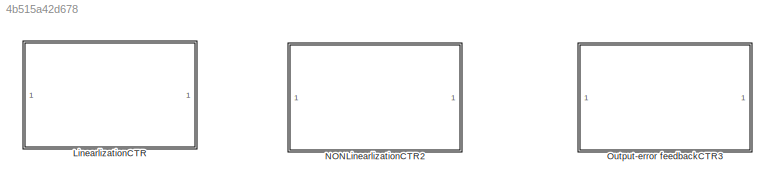
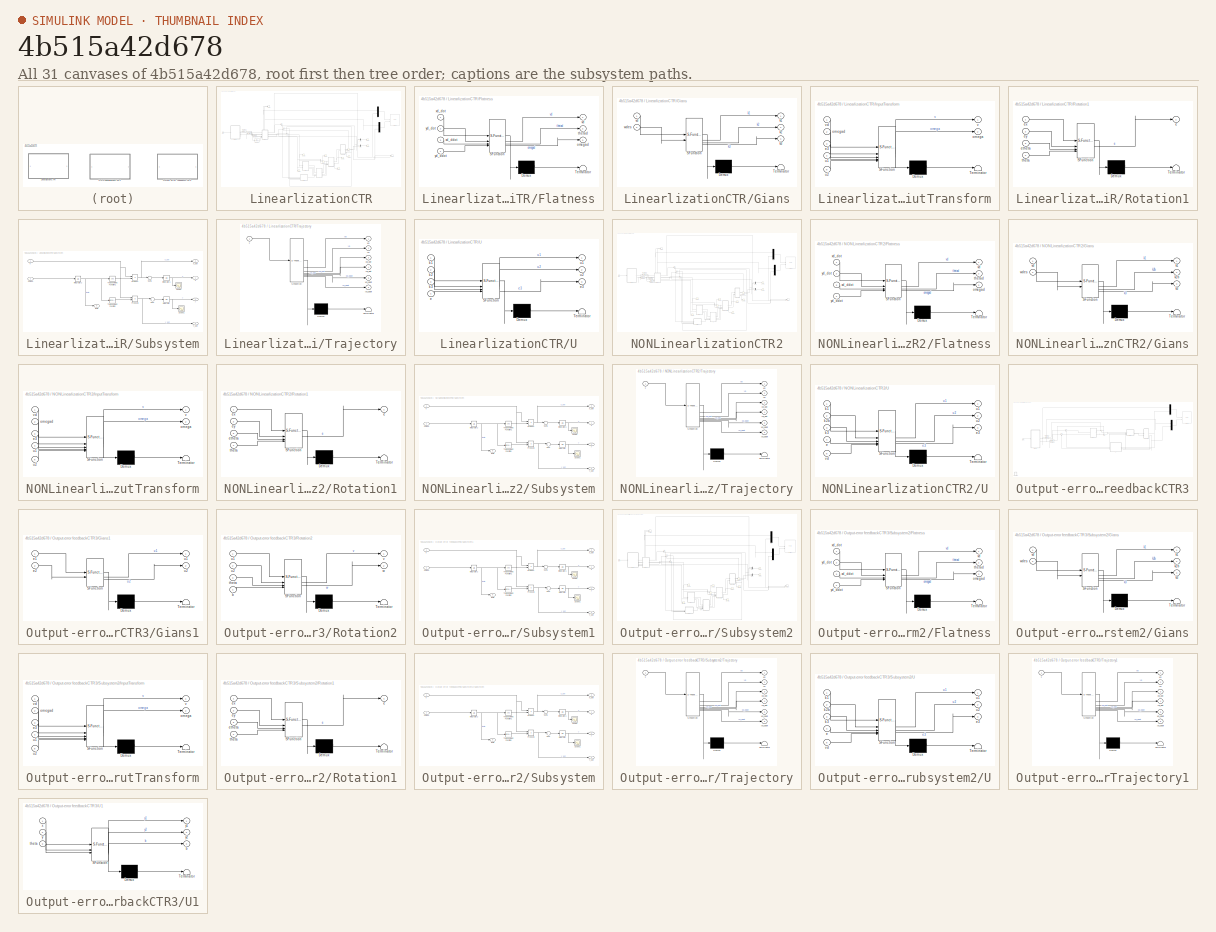
[diagram: thumbnail index - all 31 canvases of the model, root first then tree order]
MODEL slx_4b515a42d678
KIND model
CONFIG AbsTol = auto
CONFIG EnableMultiTasking = off
CONFIG FixedStep = auto
CONFIG MaxStep = auto
CONFIG MinStep = auto
CONFIG RelTol = 1e-3
CONFIG SampleTimeConstraint = Unconstrained
CONFIG SolverName = ode45
CONFIG StartTime = 0.0
CONFIG StopTime = 10000
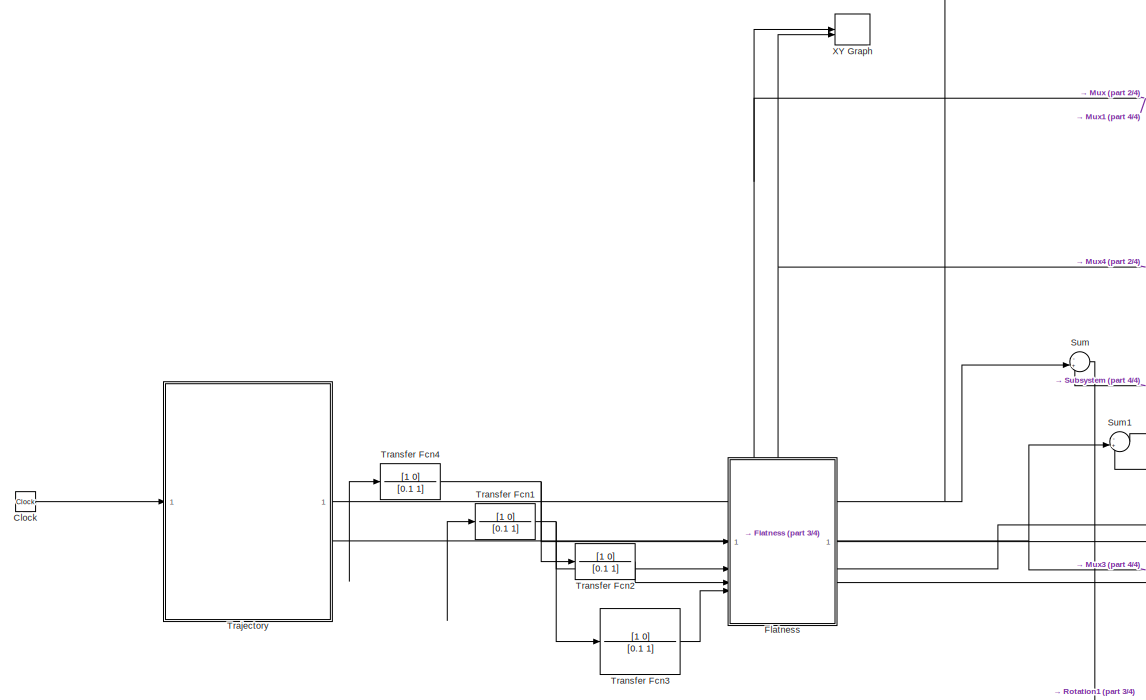
[diagram: LinearlizationCTR - part 1/4, middle left region]
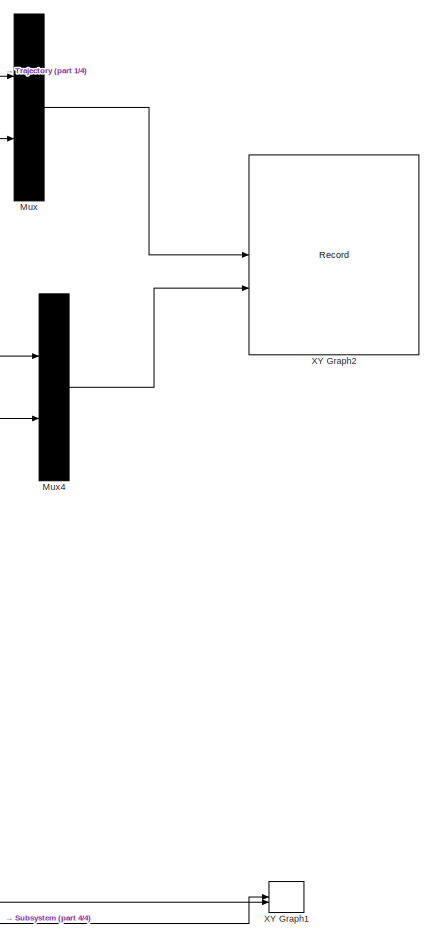
[diagram: LinearlizationCTR - part 2/4, middle right region]
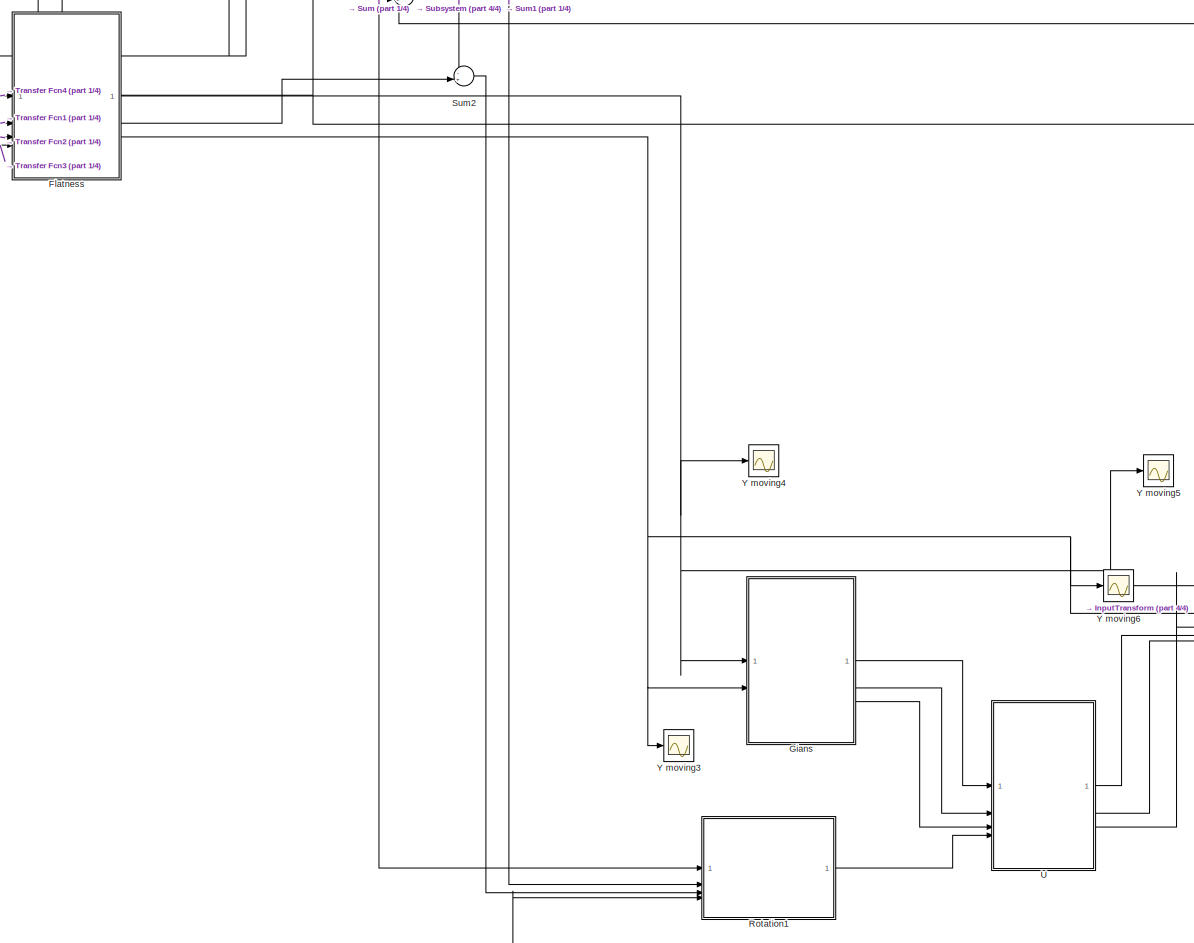
[diagram: LinearlizationCTR - part 3/4, bottom center region]
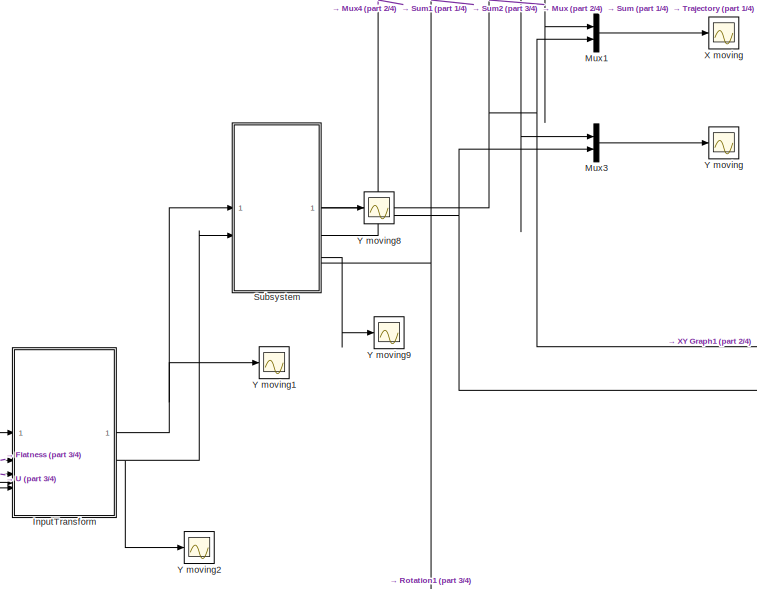
[diagram: LinearlizationCTR - part 4/4, middle right region]
BLOCK [SubSystem] LinearlizationCTR
  Commented = on
BLOCK [Clock] LinearlizationCTR/Clock
  DisplayTime = on
BLOCK [SubSystem] LinearlizationCTR/Flatness
  ErrorFcn = Stateflow.Translate.translate
  PermitHierarchicalResolution = ExplicitOnly
  SFBlockType = MATLAB Function
  TreatAsAtomicUnit = on
BLOCK [Demux] LinearlizationCTR/Flatness/ Demux 
  Outputs = 1
BLOCK [S-Function] LinearlizationCTR/Flatness/ SFunction 
  EnableBusSupport = off
  FunctionName = sf_sfun
  PortCounts = [4 4]
  SFcnIsStateOwnerBlock = off
  SFunctionDeploymentMode = off
  Tag = Stateflow S-Function 3
BLOCK [Terminator] LinearlizationCTR/Flatness/ Terminator 
BLOCK [Outport] LinearlizationCTR/Flatness/omegad
  Port = 3
BLOCK [Outport] LinearlizationCTR/Flatness/thetad
  Port = 2
BLOCK [Outport] LinearlizationCTR/Flatness/vd
BLOCK [Inport] LinearlizationCTR/Flatness/xd_ddot
  Port = 3
BLOCK [Inport] LinearlizationCTR/Flatness/xd_dot
BLOCK [Inport] LinearlizationCTR/Flatness/yd_ddot
  Port = 4
BLOCK [Inport] LinearlizationCTR/Flatness/yd_dot
  Port = 2
BLOCK [SubSystem] LinearlizationCTR/Gians
  ErrorFcn = Stateflow.Translate.translate
  PermitHierarchicalResolution = ExplicitOnly
  SFBlockType = MATLAB Function
  TreatAsAtomicUnit = on
BLOCK [Demux] LinearlizationCTR/Gians/ Demux 
  Outputs = 1
BLOCK [S-Function] LinearlizationCTR/Gians/ SFunction 
  EnableBusSupport = off
  FunctionName = sf_sfun
  PortCounts = [2 4]
  SFcnIsStateOwnerBlock = off
  SFunctionDeploymentMode = off
  Tag = Stateflow S-Function 6
BLOCK [Terminator] LinearlizationCTR/Gians/ Terminator 
BLOCK [Outport] LinearlizationCTR/Gians/k1
BLOCK [Outport] LinearlizationCTR/Gians/k2
  Port = 2
BLOCK [Outport] LinearlizationCTR/Gians/k3
  Port = 3
BLOCK [Inport] LinearlizationCTR/Gians/vd
BLOCK [Inport] LinearlizationCTR/Gians/wdes
  Port = 2
BLOCK [SubSystem] LinearlizationCTR/InputTransform
  ErrorFcn = Stateflow.Translate.translate
  PermitHierarchicalResolution = ExplicitOnly
  SFBlockType = MATLAB Function
  TreatAsAtomicUnit = on
BLOCK [Demux] LinearlizationCTR/InputTransform/ Demux 
  Outputs = 1
BLOCK [S-Function] LinearlizationCTR/InputTransform/ SFunction 
  EnableBusSupport = off
  FunctionName = sf_sfun
  PortCounts = [5 3]
  SFcnIsStateOwnerBlock = off
  SFunctionDeploymentMode = off
  Tag = Stateflow S-Function 8
BLOCK [Terminator] LinearlizationCTR/InputTransform/ Terminator 
BLOCK [Inport] LinearlizationCTR/InputTransform/e3
  Port = 3
BLOCK [Outport] LinearlizationCTR/InputTransform/omega
  Port = 2
BLOCK [Inport] LinearlizationCTR/InputTransform/omegad
  Port = 2
BLOCK [Inport] LinearlizationCTR/InputTransform/u1
  Port = 4
BLOCK [Inport] LinearlizationCTR/InputTransform/u2
  Port = 5
BLOCK [Outport] LinearlizationCTR/InputTransform/v
BLOCK [Inport] LinearlizationCTR/InputTransform/vd
BLOCK [Mux] LinearlizationCTR/Mux
  DisplayOption = bar
  Inputs = 2
BLOCK [Mux] LinearlizationCTR/Mux1
  DisplayOption = bar
  Inputs = 2
BLOCK [Mux] LinearlizationCTR/Mux3
  DisplayOption = bar
  Inputs = 2
BLOCK [Mux] LinearlizationCTR/Mux4
  DisplayOption = bar
  Inputs = 2
BLOCK [SubSystem] LinearlizationCTR/Rotation1
  ErrorFcn = Stateflow.Translate.translate
  PermitHierarchicalResolution = ExplicitOnly
  SFBlockType = MATLAB Function
  TreatAsAtomicUnit = on
BLOCK [Demux] LinearlizationCTR/Rotation1/ Demux 
  Outputs = 1
BLOCK [S-Function] LinearlizationCTR/Rotation1/ SFunction 
  EnableBusSupport = off
  FunctionName = sf_sfun
  PortCounts = [4 2]
  SFcnIsStateOwnerBlock = off
  SFunctionDeploymentMode = off
  Tag = Stateflow S-Function 5
BLOCK [Terminator] LinearlizationCTR/Rotation1/ Terminator 
BLOCK [Outport] LinearlizationCTR/Rotation1/e
BLOCK [Inport] LinearlizationCTR/Rotation1/etheta
  Port = 3
BLOCK [Inport] LinearlizationCTR/Rotation1/ex
BLOCK [Inport] LinearlizationCTR/Rotation1/ey
  Port = 2
BLOCK [Inport] LinearlizationCTR/Rotation1/theta
  Port = 4
BLOCK [SubSystem] LinearlizationCTR/Subsystem
BLOCK [Integrator] LinearlizationCTR/Subsystem/Integrator
BLOCK [Integrator] LinearlizationCTR/Subsystem/Integrator1
BLOCK [Integrator] LinearlizationCTR/Subsystem/Integrator2
BLOCK [Product] LinearlizationCTR/Subsystem/Product
BLOCK [Product] LinearlizationCTR/Subsystem/Product1
BLOCK [Scope] LinearlizationCTR/Subsystem/Scope
  ActiveDisplayYMaximum = 2.8001536498931303
  ActiveDisplayYMinimum = -0.63591257102151144
  Floating = off
  GraphicalSettings = {"AxesScalingProperties":{"AlignXAxis":"Center","AlignYAxis":"Center","AutoScaleXAxisLimits":false,"AxesScaling":"Manual","AxesScalingNumUpdates":10,"ExpandOnly":true,"ScaleAxesLimitsAtStop":false,"XAxisDataRange":100,"YAxisDataRange":80},"DisplayProperties":{"ColorOrder":["auto","auto","auto","auto","auto","auto","auto","auto","auto","auto","auto","auto","auto","auto","auto","auto","auto","auto",...<+1918ch>  <repeated x4 — deduplicated; at blocks: Scope>
  MultipleDisplayCache = [{"MaxYLimMag":2.3076409661185822,"MaxYLimReal":2.8001536498931303,"MinYLimMag":0,"MinYLimReal":-0.63591257102151144,"PlotAsMagnitudePhase":false,"ShowGrid":true,"ShowLegend":false,"Title":"%<SignalLabel>","YLabel":""}]  <repeated x4 — deduplicated; at blocks: Scope>
  NumInputPorts = 1
  ScopeFrameLocation = window
  WasSavedAsWebScope = on
  WindowPosition = [360.000000,150.000000,560.000000,420.000000,]
BLOCK [Scope] LinearlizationCTR/Subsystem/Scope1
  ActiveDisplayYMaximum = 3.6680934698341847
  ActiveDisplayYMinimum = -1.1667967618896729
  DataLoggingVariableName = ScopeData1
  Floating = off
  GraphicalSettings = {"AxesScalingProperties":{"AlignXAxis":"Center","AlignYAxis":"Center","AutoScaleXAxisLimits":false,"AxesScaling":"Manual","AxesScalingNumUpdates":10,"ExpandOnly":true,"ScaleAxesLimitsAtStop":false,"XAxisDataRange":100,"YAxisDataRange":80},"DisplayProperties":{"ColorOrder":["auto","auto","auto","auto","auto","auto","auto","auto","auto","auto","auto","auto","auto","auto","auto","auto","auto","auto",...<+2014ch>  <repeated x4 — deduplicated; at blocks: Scope1>
  MultipleDisplayCache = [{"MaxYLimMag":2.3076409661185822,"MaxYLimReal":3.6680934698341847,"MinYLimMag":0,"MinYLimReal":-1.1667967618896729,"PlotAsMagnitudePhase":false,"ShowGrid":true,"ShowLegend":false,"Title":"%<SignalLabel>","YLabel":""}]  <repeated x4 — deduplicated; at blocks: Scope1>
  NumInputPorts = 1
  ScopeFrameLocation = window
  WasSavedAsWebScope = on
  WindowPosition = [360.000000,150.000000,560.000000,420.000000,]
BLOCK [Sum] LinearlizationCTR/Subsystem/Sum
  Inputs = |+-
BLOCK [Sum] LinearlizationCTR/Subsystem/Sum1
  Inputs = |+-
BLOCK [Trigonometry] LinearlizationCTR/Subsystem/Trigonometric Function
BLOCK [Trigonometry] LinearlizationCTR/Subsystem/Trigonometric Function1
  Operator = cos
BLOCK [Inport] LinearlizationCTR/Subsystem/V
BLOCK [Outport] LinearlizationCTR/Subsystem/X_dot
  Port = 3
BLOCK [Outport] LinearlizationCTR/Subsystem/Y_dot
  Port = 4
BLOCK [Inport] LinearlizationCTR/Subsystem/omega
  Port = 2
BLOCK [Outport] LinearlizationCTR/Subsystem/theta
  Port = 5
BLOCK [Outport] LinearlizationCTR/Subsystem/x
BLOCK [Outport] LinearlizationCTR/Subsystem/y
  Port = 2
BLOCK [Sum] LinearlizationCTR/Sum
  Inputs = -+|
  NameLocation = left
BLOCK [Sum] LinearlizationCTR/Sum1
  Inputs = -+|
BLOCK [Sum] LinearlizationCTR/Sum2
  Inputs = -+|
BLOCK [SubSystem] LinearlizationCTR/Trajectory
  ErrorFcn = Stateflow.Translate.translate
  PermitHierarchicalResolution = ExplicitOnly
  SFBlockType = MATLAB Function
  TreatAsAtomicUnit = on
BLOCK [Demux] LinearlizationCTR/Trajectory/ Demux 
  Outputs = 1
BLOCK [S-Function] LinearlizationCTR/Trajectory/ SFunction 
  EnableBusSupport = off
  FunctionName = sf_sfun
  PortCounts = [1 7]
  SFcnIsStateOwnerBlock = off
  SFunctionDeploymentMode = off
  Tag = Stateflow S-Function 1
BLOCK [Terminator] LinearlizationCTR/Trajectory/ Terminator 
BLOCK [Inport] LinearlizationCTR/Trajectory/t
BLOCK [Outport] LinearlizationCTR/Trajectory/xd
BLOCK [Outport] LinearlizationCTR/Trajectory/xd_ddot
  Port = 5
BLOCK [Outport] LinearlizationCTR/Trajectory/xd_dot
  Port = 3
BLOCK [Outport] LinearlizationCTR/Trajectory/yd
  Port = 2
BLOCK [Outport] LinearlizationCTR/Trajectory/yd_ddot
  Port = 6
BLOCK [Outport] LinearlizationCTR/Trajectory/yd_dot
  Port = 4
BLOCK [TransferFcn] LinearlizationCTR/Transfer Fcn1
  Denominator = [0.1 1]
  Numerator = [1 0]
BLOCK [TransferFcn] LinearlizationCTR/Transfer Fcn2
  Denominator = [0.1 1]
  Numerator = [1 0]
BLOCK [TransferFcn] LinearlizationCTR/Transfer Fcn3
  Denominator = [0.1 1]
  Numerator = [1 0]
BLOCK [TransferFcn] LinearlizationCTR/Transfer Fcn4
  Denominator = [0.1 1]
  Numerator = [1 0]
BLOCK [SubSystem] LinearlizationCTR/U
  ErrorFcn = Stateflow.Translate.translate
  PermitHierarchicalResolution = ExplicitOnly
  SFBlockType = MATLAB Function
  TreatAsAtomicUnit = on
BLOCK [Demux] LinearlizationCTR/U/ Demux 
  Outputs = 1
BLOCK [S-Function] LinearlizationCTR/U/ SFunction 
  EnableBusSupport = off
  FunctionName = sf_sfun
  PortCounts = [4 4]
  SFcnIsStateOwnerBlock = off
  SFunctionDeploymentMode = off
  Tag = Stateflow S-Function 7
BLOCK [Terminator] LinearlizationCTR/U/ Terminator 
BLOCK [Inport] LinearlizationCTR/U/e
  Port = 4
BLOCK [Outport] LinearlizationCTR/U/e3
  Port = 3
BLOCK [Inport] LinearlizationCTR/U/k1
BLOCK [Inport] LinearlizationCTR/U/k2
  Port = 2
BLOCK [Inport] LinearlizationCTR/U/k3
  Port = 3
BLOCK [Outport] LinearlizationCTR/U/u1
BLOCK [Outport] LinearlizationCTR/U/u2
  Port = 2
BLOCK [Scope] LinearlizationCTR/X moving
  ActiveDisplayYMaximum = 6.89936023828367
  ActiveDisplayYMinimum = -7.5707248352770318
  DataLoggingVariableName = ScopeData2
  Floating = off
  GraphicalSettings = {"AxesScalingProperties":{"AlignXAxis":"Center","AlignYAxis":"Center","AutoScaleXAxisLimits":false,"AxesScaling":"Manual","AxesScalingNumUpdates":10,"ExpandOnly":true,"ScaleAxesLimitsAtStop":false,"XAxisDataRange":100,"YAxisDataRange":80},"DisplayProperties":{"ColorOrder":["auto","auto","auto","auto","auto","auto","auto","auto","auto","auto","auto","auto","auto","auto","auto","auto","auto","auto",...<+2145ch>
  MultipleDisplayCache = [{"MaxYLimMag":6.2499803540490833,"MaxYLimReal":6.89936023828367,"MinYLimMag":0,"MinYLimReal":-7.5707248352770318,"PlotAsMagnitudePhase":false,"ShowGrid":true,"ShowLegend":false,"Title":"%<SignalLabel>","YLabel":""}]  <repeated x3 — deduplicated; at blocks: X moving>
  NumInputPorts = 1
  ScopeFrameLocation = window
  WasSavedAsWebScope = on
  WindowPosition = [302.000000,147.000000,560.000000,420.000000,]
BLOCK [Record] LinearlizationCTR/XY Graph
  CompatibilityTag = XY
  FileSettingsInternal = {"entries":[{"content":{"excelSettings":{"content":{},"type":"Streamout.ExcelSettings"},"parquetSettings":{"content":{},"type":"Streamout.ParquetSettings"}},"type":"Streamout.FileSettingStorage","uuid":""}],"packageUris":["http:\/\/schema.mathworks.com\/mf0\/streamout_blocks\/R2020a"],"version":"1.0"}  <repeated x10 — deduplicated; at blocks: XY Graph, XY Graph1, XY Graph2, XY Graph3>
  FrameSettings = [0, 0]
  Layout = [1 1]
  NumPorts = 2.0
  SignalsInternal = {"entries":[{"content":{},"type":"RecordBlkView.InputSignals","uuid":""}],"packageUris":["http:\/\/schema.mathworks.com\/mf0\/streamout_blocks\/R2020a"],"version":"1.0"}
  VisualizationBindings = {"xyplotplugin":{"info":[{"series":[],"subplotID":1}]}}
BLOCK [Record] LinearlizationCTR/XY Graph1
  CompatibilityTag = XY
  FrameSettings = [0, 0]
  Layout = [1 1]
  NumPorts = 2.0
  SignalsInternal = {"entries":[{"content":{},"type":"RecordBlkView.InputSignals","uuid":""}],"packageUris":["http:\/\/schema.mathworks.com\/mf0\/streamout_blocks\/R2020a"],"version":"1.0"}
  VisualizationBindings = {"xyplotplugin":{"info":[{"series":[],"subplotID":1}]}}
BLOCK [Record] LinearlizationCTR/XY Graph2
  CompatibilityTag = XY
  FrameSettings = [0, 0]
  Layout = [1 1]
  NumPorts = 2.0
  SignalsInternal = {"entries":[{"content":{},"type":"RecordBlkView.InputSignals","uuid":""}],"packageUris":["http:\/\/schema.mathworks.com\/mf0\/streamout_blocks\/R2020a"],"version":"1.0"}
  VisualizationBindings = {"xyplotplugin":{"info":[{"series":[],"subplotID":1}]}}
BLOCK [Scope] LinearlizationCTR/Y moving
  ActiveDisplayYMaximum = 5.2374840982446349
  ActiveDisplayYMinimum = -5.0263813296916764
  DataLoggingVariableName = ScopeData3
  Floating = off
  GraphicalSettings = {"Style":{"BackgroundColor":[0.12941176470588237,0.12941176470588237,0.12941176470588237],"AxesColor":[0.07058823529411765,0.07058823529411765,0.07058823529411765],"LabelsColor":[0.8509803921568627,0.8509803921568627,0.8509803921568627],"PreserveColors":false,"Visible":[true,true],"LineStyle":["-","-"],"LineWidth":[1.5,1.5],"BarWidth":[0.9,0.9],"LineColor":["auto","auto"],"LineFaceAlpha":[1,1],"Li...<+2128ch>
  MultipleDisplayCache = [{"MaxYLimMag":5.2374840982446349,"MaxYLimReal":5.2374840982446349,"MinYLimMag":0,"MinYLimReal":-5.0263813296916764,"PlotAsMagnitudePhase":false,"ShowGrid":true,"ShowLegend":false,"Title":"%<SignalLabel>","YLabel":""}]
  NumInputPorts = 1
  ScopeFrameLocation = window
  WasSavedAsWebScope = on
  WindowPosition = [302.000000,147.000000,560.000000,420.000000,]
BLOCK [Scope] LinearlizationCTR/Y moving1
  ActiveDisplayYMaximum = 308.9242324132311
  ActiveDisplayYMinimum = -34.324914712581226
  DataLoggingVariableName = ScopeData4
  Floating = off
  GraphicalSettings = {"Style":{"BackgroundColor":[0.12941176470588237,0.12941176470588237,0.12941176470588237],"AxesColor":[0.07058823529411765,0.07058823529411765,0.07058823529411765],"LabelsColor":[0.8509803921568627,0.8509803921568627,0.8509803921568627],"PreserveColors":false,"Visible":[true],"LineStyle":["-"],"LineWidth":[1.5],"BarWidth":[0.9],"LineColor":["auto"],"LineFaceAlpha":[1],"LineEdgeAlpha":[1],"Marker":...<+2015ch>  <repeated x3 — deduplicated; at blocks: Y moving1>
  MultipleDisplayCache = [{"MaxYLimMag":308.9242324132311,"MaxYLimReal":308.9242324132311,"MinYLimMag":0,"MinYLimReal":-34.324914712581226,"PlotAsMagnitudePhase":false,"ShowGrid":true,"ShowLegend":false,"Title":"%<SignalLabel>","YLabel":""}]  <repeated x3 — deduplicated; at blocks: Y moving1>
  NumInputPorts = 1
  ScopeFrameLocation = window
  WasSavedAsWebScope = on
  WindowPosition = [302.000000,147.000000,560.000000,420.000000,]
BLOCK [Scope] LinearlizationCTR/Y moving2
  ActiveDisplayYMaximum = 1.4491472238781191E+7
  ActiveDisplayYMinimum = -1.6157130196688239E+7
  DataLoggingVariableName = ScopeData5
  Floating = off
  GraphicalSettings = {"Style":{"BackgroundColor":[0.12941176470588237,0.12941176470588237,0.12941176470588237],"AxesColor":[0.07058823529411765,0.07058823529411765,0.07058823529411765],"LabelsColor":[0.8509803921568627,0.8509803921568627,0.8509803921568627],"PreserveColors":false,"Visible":[true],"LineStyle":["-"],"LineWidth":[1.5],"BarWidth":[0.9],"LineColor":["auto"],"LineFaceAlpha":[1],"LineEdgeAlpha":[1],"Marker":...<+2023ch>  <repeated x3 — deduplicated; at blocks: Y moving2>
  MultipleDisplayCache = [{"MaxYLimMag":5.3046097378929229E+6,"MaxYLimReal":1.4491472238781191E+7,"MinYLimMag":0,"MinYLimReal":-1.6157130196688239E+7,"PlotAsMagnitudePhase":false,"ShowGrid":true,"ShowLegend":false,"Title":"%<SignalLabel>","YLabel":""}]  <repeated x3 — deduplicated; at blocks: Y moving2>
  NumInputPorts = 1
  ScopeFrameLocation = window
  WasSavedAsWebScope = on
  WindowPosition = [302.000000,147.000000,560.000000,420.000000,]
BLOCK [Scope] LinearlizationCTR/Y moving3
  ActiveDisplayYMaximum = 5.0000000000000542
  ActiveDisplayYMinimum = 4.999999999999944
  DataLoggingVariableName = ScopeData6
  Floating = off
  GraphicalSettings = {"AxesScalingProperties":{"AlignXAxis":"Center","AlignYAxis":"Center","AutoScaleXAxisLimits":false,"AxesScaling":"Manual","AxesScalingNumUpdates":10,"ExpandOnly":true,"ScaleAxesLimitsAtStop":false,"XAxisDataRange":100,"YAxisDataRange":80},"DisplayProperties":{"ColorOrder":["auto","auto","auto","auto","auto","auto","auto","auto","auto","auto","auto","auto","auto","auto","auto","auto","auto","auto",...<+2042ch>  <repeated x3 — deduplicated; at blocks: Y moving3>
  MultipleDisplayCache = [{"MaxYLimMag":5.0000000000000018,"MaxYLimReal":5.0000000000000542,"MinYLimMag":4.9999999999999982,"MinYLimReal":4.999999999999944,"PlotAsMagnitudePhase":false,"ShowGrid":true,"ShowLegend":false,"Title":"%<SignalLabel>","YLabel":""}]  <repeated x3 — deduplicated; at blocks: Y moving3>
  NumInputPorts = 1
  ScopeFrameLocation = window
  WasSavedAsWebScope = on
  WindowPosition = [302.000000,147.000000,560.000000,420.000000,]
BLOCK [Scope] LinearlizationCTR/Y moving4
  ActiveDisplayYMaximum = 10.000000000000002
  ActiveDisplayYMinimum = 9.9999999999999982
  DataLoggingVariableName = ScopeData7
  Floating = off
  GraphicalSettings = {"AxesScalingProperties":{"AlignXAxis":"Center","AlignYAxis":"Center","AutoScaleXAxisLimits":false,"AxesScaling":"Manual","AxesScalingNumUpdates":10,"ExpandOnly":true,"ScaleAxesLimitsAtStop":false,"XAxisDataRange":100,"YAxisDataRange":80},"Cursors":{"CursorChannels":["auto","auto"],"Enabled":false,"Horizontal":true,"LinkToWaveform":true,"LockSpacing":false,"ShowMeasurement":true,"ShowPanel":false,...<+2631ch>  <repeated x3 — deduplicated; at blocks: Y moving4>
  MultipleDisplayCache = [{"MaxYLimMag":10.000000000000002,"MaxYLimReal":10.000000000000002,"MinYLimMag":9.9999999999999982,"MinYLimReal":9.9999999999999982,"PlotAsMagnitudePhase":false,"ShowGrid":true,"ShowLegend":false,"Title":"%<SignalLabel>","YLabel":""}]  <repeated x3 — deduplicated; at blocks: Y moving4>
  NumInputPorts = 1
  ScopeFrameLocation = window
  WasSavedAsWebScope = on
  WindowPosition = [302.000000,147.000000,560.000000,420.000000,]
BLOCK [Scope] LinearlizationCTR/Y moving5
  ActiveDisplayYMaximum = 1
  ActiveDisplayYMinimum = 0.99999999999999978
  DataLoggingVariableName = ScopeData8
  Floating = off
  GraphicalSettings = {"AxesScalingProperties":{"AlignXAxis":"Center","AlignYAxis":"Center","AutoScaleXAxisLimits":false,"AxesScaling":"Manual","AxesScalingNumUpdates":10,"ExpandOnly":true,"ScaleAxesLimitsAtStop":false,"XAxisDataRange":100,"YAxisDataRange":80},"DisplayProperties":{"ColorOrder":["auto","auto","auto","auto","auto","auto","auto","auto","auto","auto","auto","auto","auto","auto","auto","auto","auto","auto",...<+2048ch>  <repeated x3 — deduplicated; at blocks: Y moving5>
  MultipleDisplayCache = [{"MaxYLimMag":1,"MaxYLimReal":1,"MinYLimMag":0.99999999999999978,"MinYLimReal":0.99999999999999978,"PlotAsMagnitudePhase":false,"ShowGrid":true,"ShowLegend":false,"Title":"%<SignalLabel>","YLabel":""}]  <repeated x3 — deduplicated; at blocks: Y moving5>
  NumInputPorts = 1
  ScopeFrameLocation = window
  WasSavedAsWebScope = on
  WindowPosition = [302.000000,147.000000,560.000000,420.000000,]
BLOCK [Scope] LinearlizationCTR/Y moving6
  ActiveDisplayYMaximum = 0.60000000000000009
  ActiveDisplayYMinimum = 0.4
  DataLoggingVariableName = ScopeData9
  Floating = off
  GraphicalSettings = {"Style":{"BackgroundColor":[0.12941176470588237,0.12941176470588237,0.12941176470588237],"AxesColor":[0.07058823529411765,0.07058823529411765,0.07058823529411765],"LabelsColor":[0.8509803921568627,0.8509803921568627,0.8509803921568627],"PreserveColors":false,"Visible":[true],"LineStyle":["-"],"LineWidth":[1.5],"BarWidth":[0.9],"LineColor":["auto"],"LineFaceAlpha":[1],"LineEdgeAlpha":[1],"Marker":...<+2039ch>  <repeated x3 — deduplicated; at blocks: Y moving6>
  MultipleDisplayCache = [{"MaxYLimMag":0.60000000000000009,"MaxYLimReal":0.60000000000000009,"MinYLimMag":0.4,"MinYLimReal":0.4,"PlotAsMagnitudePhase":false,"ShowGrid":true,"ShowLegend":false,"Title":"%<SignalLabel>","YLabel":""}]  <repeated x3 — deduplicated; at blocks: Y moving6>
  NumInputPorts = 1
  ScopeFrameLocation = window
  WasSavedAsWebScope = on
  WindowPosition = [302.000000,147.000000,560.000000,420.000000,]
BLOCK [Scope] LinearlizationCTR/Y moving8
  ActiveDisplayYMaximum = 12.533856742114697
  ActiveDisplayYMinimum = -4.8047106790322678
  DataLoggingVariableName = ScopeData11
  Floating = off
  GraphicalSettings = {"Style":{"BackgroundColor":[0.12941176470588237,0.12941176470588237,0.12941176470588237],"AxesColor":[0.07058823529411765,0.07058823529411765,0.07058823529411765],"LabelsColor":[0.8509803921568627,0.8509803921568627,0.8509803921568627],"PreserveColors":false,"Visible":[true],"LineStyle":["-"],"LineWidth":[1.5],"BarWidth":[0.9],"LineColor":["auto"],"LineFaceAlpha":[1],"LineEdgeAlpha":[1],"Marker":...<+2011ch>  <repeated x6 — deduplicated; at blocks: Y moving8, Y moving9>
  MultipleDisplayCache = [{"MaxYLimMag":12.533856742114697,"MaxYLimReal":12.533856742114697,"MinYLimMag":0,"MinYLimReal":-4.8047106790322678,"PlotAsMagnitudePhase":false,"ShowGrid":true,"ShowLegend":false,"Title":"%<SignalLabel>","YLabel":""}]  <repeated x3 — deduplicated; at blocks: Y moving8>
  NumInputPorts = 1
  ScopeFrameLocation = window
  WasSavedAsWebScope = on
  WindowPosition = [302.000000,147.000000,560.000000,420.000000,]
BLOCK [Scope] LinearlizationCTR/Y moving9
  ActiveDisplayYMaximum = 4.6099967599268465
  ActiveDisplayYMinimum = -3.6998487914435718
  DataLoggingVariableName = ScopeData12
  Floating = off
  MultipleDisplayCache = [{"MaxYLimMag":4.6099967599268465,"MaxYLimReal":4.6099967599268465,"MinYLimMag":0,"MinYLimReal":-3.6998487914435718,"PlotAsMagnitudePhase":false,"ShowGrid":true,"ShowLegend":false,"Title":"%<SignalLabel>","YLabel":""}]  <repeated x3 — deduplicated; at blocks: Y moving9>
  NumInputPorts = 1
  ScopeFrameLocation = window
  WasSavedAsWebScope = on
  WindowPosition = [302.000000,147.000000,560.000000,420.000000,]
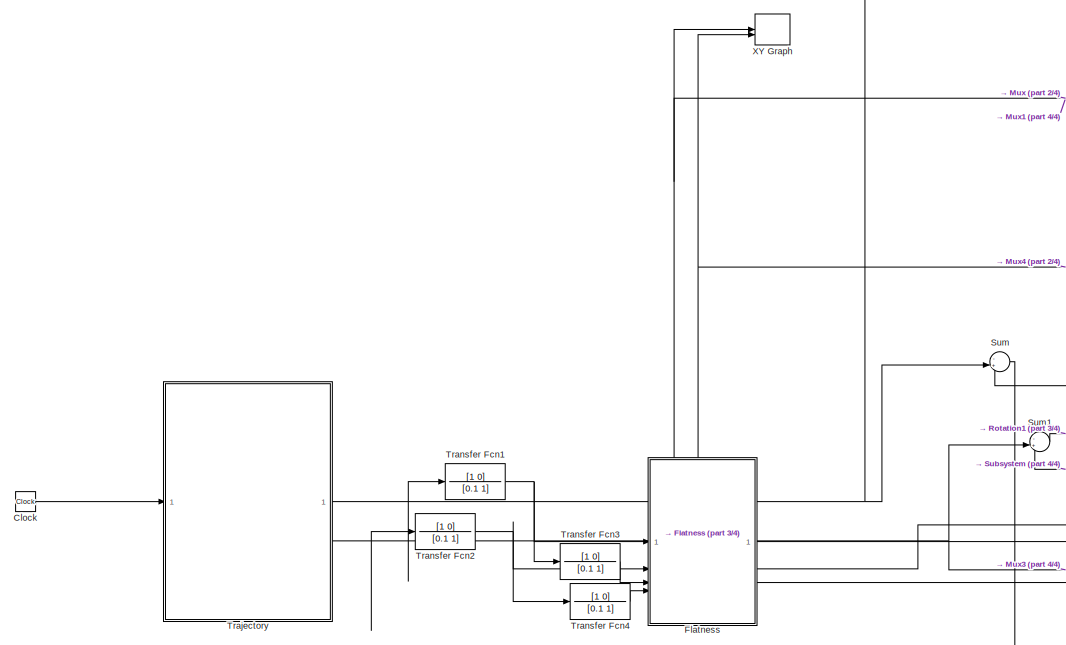
[diagram: NONLinearlizationCTR2 - part 1/4, top left region]
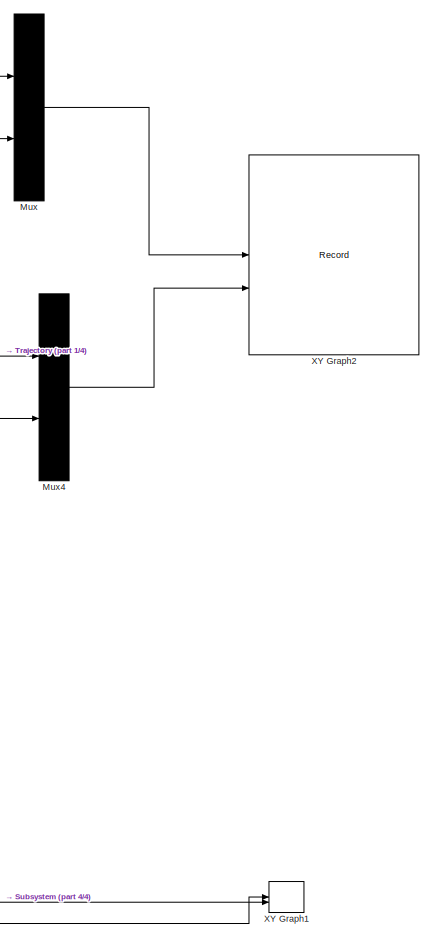
[diagram: NONLinearlizationCTR2 - part 2/4, middle right region]
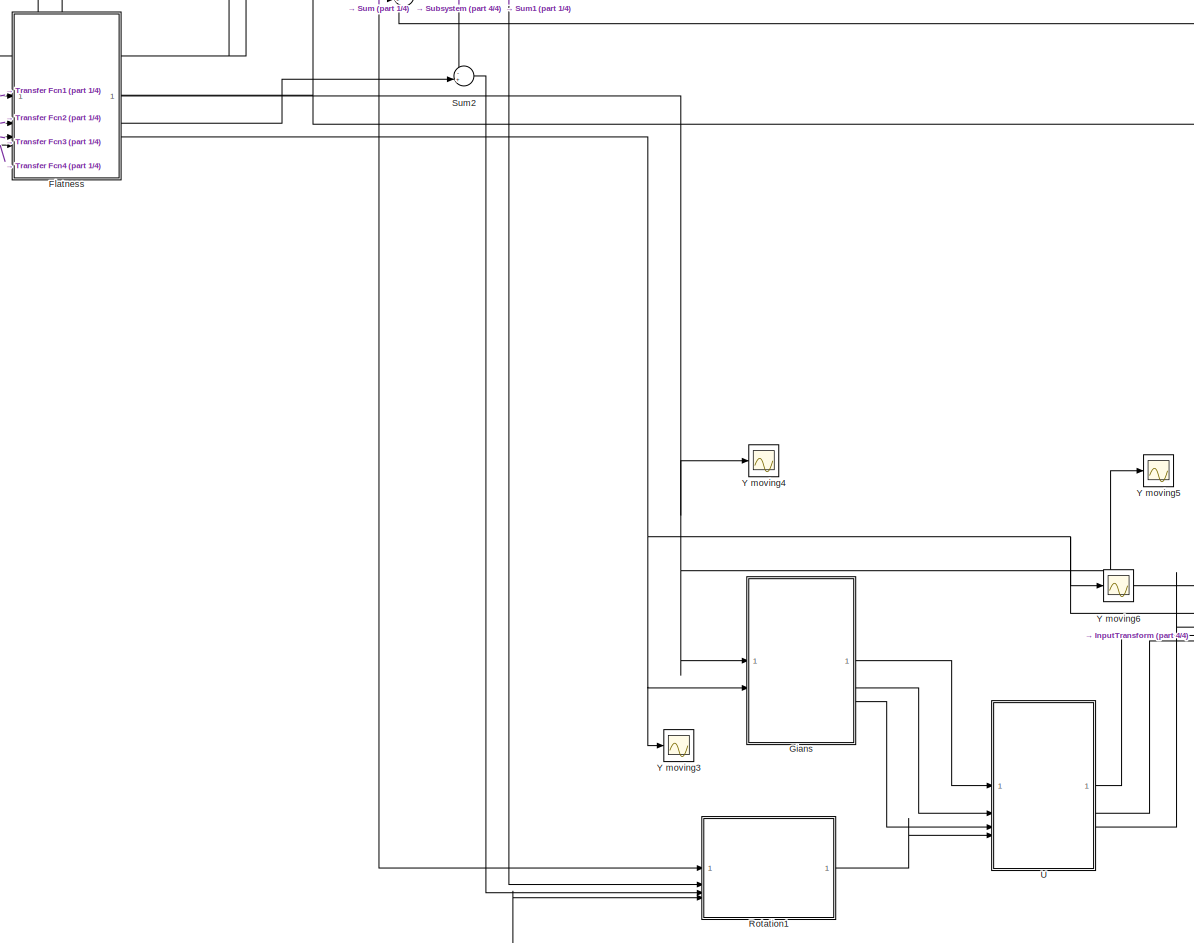
[diagram: NONLinearlizationCTR2 - part 3/4, bottom center region]
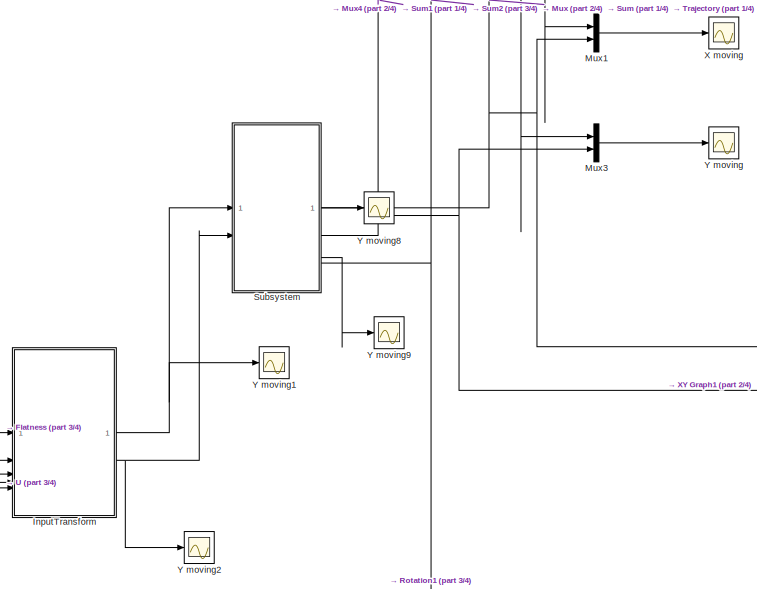
[diagram: NONLinearlizationCTR2 - part 4/4, middle right region]
BLOCK [SubSystem] NONLinearlizationCTR2
  Commented = on
BLOCK [Clock] NONLinearlizationCTR2/Clock
  DisplayTime = on
BLOCK [SubSystem] NONLinearlizationCTR2/Flatness
  ErrorFcn = Stateflow.Translate.translate
  PermitHierarchicalResolution = ExplicitOnly
  SFBlockType = MATLAB Function
  TreatAsAtomicUnit = on
BLOCK [Demux] NONLinearlizationCTR2/Flatness/ Demux 
  Outputs = 1
BLOCK [S-Function] NONLinearlizationCTR2/Flatness/ SFunction 
  EnableBusSupport = off
  FunctionName = sf_sfun
  PortCounts = [4 4]
  SFcnIsStateOwnerBlock = off
  SFunctionDeploymentMode = off
  Tag = Stateflow S-Function 9
BLOCK [Terminator] NONLinearlizationCTR2/Flatness/ Terminator 
BLOCK [Outport] NONLinearlizationCTR2/Flatness/omegad
  Port = 3
BLOCK [Outport] NONLinearlizationCTR2/Flatness/thetad
  Port = 2
BLOCK [Outport] NONLinearlizationCTR2/Flatness/vd
BLOCK [Inport] NONLinearlizationCTR2/Flatness/xd_ddot
  Port = 3
BLOCK [Inport] NONLinearlizationCTR2/Flatness/xd_dot
BLOCK [Inport] NONLinearlizationCTR2/Flatness/yd_ddot
  Port = 4
BLOCK [Inport] NONLinearlizationCTR2/Flatness/yd_dot
  Port = 2
BLOCK [SubSystem] NONLinearlizationCTR2/Gians
  ErrorFcn = Stateflow.Translate.translate
  PermitHierarchicalResolution = ExplicitOnly
  SFBlockType = MATLAB Function
  TreatAsAtomicUnit = on
BLOCK [Demux] NONLinearlizationCTR2/Gians/ Demux 
  Outputs = 1
BLOCK [S-Function] NONLinearlizationCTR2/Gians/ SFunction 
  EnableBusSupport = off
  FunctionName = sf_sfun
  PortCounts = [2 4]
  SFcnIsStateOwnerBlock = off
  SFunctionDeploymentMode = off
  Tag = Stateflow S-Function 10
BLOCK [Terminator] NONLinearlizationCTR2/Gians/ Terminator 
BLOCK [Outport] NONLinearlizationCTR2/Gians/k1
BLOCK [Outport] NONLinearlizationCTR2/Gians/k2b
  Port = 2
BLOCK [Outport] NONLinearlizationCTR2/Gians/k3
  Port = 3
BLOCK [Inport] NONLinearlizationCTR2/Gians/vd
BLOCK [Inport] NONLinearlizationCTR2/Gians/wdes
  Port = 2
BLOCK [SubSystem] NONLinearlizationCTR2/InputTransform
  ErrorFcn = Stateflow.Translate.translate
  PermitHierarchicalResolution = ExplicitOnly
  SFBlockType = MATLAB Function
  TreatAsAtomicUnit = on
BLOCK [Demux] NONLinearlizationCTR2/InputTransform/ Demux 
  Outputs = 1
BLOCK [S-Function] NONLinearlizationCTR2/InputTransform/ SFunction 
  EnableBusSupport = off
  FunctionName = sf_sfun
  PortCounts = [5 3]
  SFcnIsStateOwnerBlock = off
  SFunctionDeploymentMode = off
  Tag = Stateflow S-Function 11
BLOCK [Terminator] NONLinearlizationCTR2/InputTransform/ Terminator 
BLOCK [Inport] NONLinearlizationCTR2/InputTransform/e3
  Port = 3
BLOCK [Outport] NONLinearlizationCTR2/InputTransform/omega
  Port = 2
BLOCK [Inport] NONLinearlizationCTR2/InputTransform/omegad
  Port = 2
BLOCK [Inport] NONLinearlizationCTR2/InputTransform/u1
  Port = 4
BLOCK [Inport] NONLinearlizationCTR2/InputTransform/u2
  Port = 5
BLOCK [Outport] NONLinearlizationCTR2/InputTransform/v
BLOCK [Inport] NONLinearlizationCTR2/InputTransform/vd
BLOCK [Mux] NONLinearlizationCTR2/Mux
  DisplayOption = bar
  Inputs = 2
BLOCK [Mux] NONLinearlizationCTR2/Mux1
  DisplayOption = bar
  Inputs = 2
BLOCK [Mux] NONLinearlizationCTR2/Mux3
  DisplayOption = bar
  Inputs = 2
BLOCK [Mux] NONLinearlizationCTR2/Mux4
  DisplayOption = bar
  Inputs = 2
BLOCK [SubSystem] NONLinearlizationCTR2/Rotation1
  ErrorFcn = Stateflow.Translate.translate
  PermitHierarchicalResolution = ExplicitOnly
  SFBlockType = MATLAB Function
  TreatAsAtomicUnit = on
BLOCK [Demux] NONLinearlizationCTR2/Rotation1/ Demux 
  Outputs = 1
BLOCK [S-Function] NONLinearlizationCTR2/Rotation1/ SFunction 
  EnableBusSupport = off
  FunctionName = sf_sfun
  PortCounts = [4 2]
  SFcnIsStateOwnerBlock = off
  SFunctionDeploymentMode = off
  Tag = Stateflow S-Function 12
BLOCK [Terminator] NONLinearlizationCTR2/Rotation1/ Terminator 
BLOCK [Outport] NONLinearlizationCTR2/Rotation1/e
BLOCK [Inport] NONLinearlizationCTR2/Rotation1/etheta
  Port = 3
BLOCK [Inport] NONLinearlizationCTR2/Rotation1/ex
BLOCK [Inport] NONLinearlizationCTR2/Rotation1/ey
  Port = 2
BLOCK [Inport] NONLinearlizationCTR2/Rotation1/theta
  Port = 4
BLOCK [SubSystem] NONLinearlizationCTR2/Subsystem
BLOCK [Integrator] NONLinearlizationCTR2/Subsystem/Integrator
BLOCK [Integrator] NONLinearlizationCTR2/Subsystem/Integrator1
BLOCK [Integrator] NONLinearlizationCTR2/Subsystem/Integrator2
BLOCK [Product] NONLinearlizationCTR2/Subsystem/Product
BLOCK [Product] NONLinearlizationCTR2/Subsystem/Product1
BLOCK [Scope] NONLinearlizationCTR2/Subsystem/Scope
  ActiveDisplayYMaximum = 2.8001536498931303
  ActiveDisplayYMinimum = -0.63591257102151144
  Floating = off
  NumInputPorts = 1
  ScopeFrameLocation = window
  WasSavedAsWebScope = on
  WindowPosition = [360.000000,150.000000,560.000000,420.000000,]
BLOCK [Scope] NONLinearlizationCTR2/Subsystem/Scope1
  ActiveDisplayYMaximum = 3.6680934698341847
  ActiveDisplayYMinimum = -1.1667967618896729
  DataLoggingVariableName = ScopeData1
  Floating = off
  NumInputPorts = 1
  ScopeFrameLocation = window
  WasSavedAsWebScope = on
  WindowPosition = [360.000000,150.000000,560.000000,420.000000,]
BLOCK [Sum] NONLinearlizationCTR2/Subsystem/Sum
  Inputs = |+-
BLOCK [Sum] NONLinearlizationCTR2/Subsystem/Sum1
  Inputs = |+-
BLOCK [Trigonometry] NONLinearlizationCTR2/Subsystem/Trigonometric Function
BLOCK [Trigonometry] NONLinearlizationCTR2/Subsystem/Trigonometric Function1
  Operator = cos
BLOCK [Inport] NONLinearlizationCTR2/Subsystem/V
BLOCK [Outport] NONLinearlizationCTR2/Subsystem/X_dot
  Port = 3
BLOCK [Outport] NONLinearlizationCTR2/Subsystem/Y_dot
  Port = 4
BLOCK [Inport] NONLinearlizationCTR2/Subsystem/omega
  Port = 2
BLOCK [Outport] NONLinearlizationCTR2/Subsystem/theta
  Port = 5
BLOCK [Outport] NONLinearlizationCTR2/Subsystem/x
BLOCK [Outport] NONLinearlizationCTR2/Subsystem/y
  Port = 2
BLOCK [Sum] NONLinearlizationCTR2/Sum
  Inputs = -+|
  NameLocation = left
BLOCK [Sum] NONLinearlizationCTR2/Sum1
  Inputs = -+|
BLOCK [Sum] NONLinearlizationCTR2/Sum2
  Inputs = -+|
BLOCK [SubSystem] NONLinearlizationCTR2/Trajectory
  ErrorFcn = Stateflow.Translate.translate
  PermitHierarchicalResolution = ExplicitOnly
  SFBlockType = MATLAB Function
  TreatAsAtomicUnit = on
BLOCK [Demux] NONLinearlizationCTR2/Trajectory/ Demux 
  Outputs = 1
BLOCK [S-Function] NONLinearlizationCTR2/Trajectory/ SFunction 
  EnableBusSupport = off
  FunctionName = sf_sfun
  PortCounts = [1 7]
  SFcnIsStateOwnerBlock = off
  SFunctionDeploymentMode = off
  Tag = Stateflow S-Function 13
BLOCK [Terminator] NONLinearlizationCTR2/Trajectory/ Terminator 
BLOCK [Inport] NONLinearlizationCTR2/Trajectory/t
BLOCK [Outport] NONLinearlizationCTR2/Trajectory/xd
BLOCK [Outport] NONLinearlizationCTR2/Trajectory/xd_ddot
  Port = 5
BLOCK [Outport] NONLinearlizationCTR2/Trajectory/xd_dot
  Port = 3
BLOCK [Outport] NONLinearlizationCTR2/Trajectory/yd
  Port = 2
BLOCK [Outport] NONLinearlizationCTR2/Trajectory/yd_ddot
  Port = 6
BLOCK [Outport] NONLinearlizationCTR2/Trajectory/yd_dot
  Port = 4
BLOCK [TransferFcn] NONLinearlizationCTR2/Transfer Fcn1
  Denominator = [0.1 1]
  Numerator = [1 0]
BLOCK [TransferFcn] NONLinearlizationCTR2/Transfer Fcn2
  Denominator = [0.1 1]
  Numerator = [1 0]
BLOCK [TransferFcn] NONLinearlizationCTR2/Transfer Fcn3
  Denominator = [0.1 1]
  Numerator = [1 0]
BLOCK [TransferFcn] NONLinearlizationCTR2/Transfer Fcn4
  Denominator = [0.1 1]
  Numerator = [1 0]
BLOCK [SubSystem] NONLinearlizationCTR2/U
  ErrorFcn = Stateflow.Translate.translate
  PermitHierarchicalResolution = ExplicitOnly
  SFBlockType = MATLAB Function
  TreatAsAtomicUnit = on
BLOCK [Demux] NONLinearlizationCTR2/U/ Demux 
  Outputs = 1
BLOCK [S-Function] NONLinearlizationCTR2/U/ SFunction 
  EnableBusSupport = off
  FunctionName = sf_sfun
  PortCounts = [5 4]
  SFcnIsStateOwnerBlock = off
  SFunctionDeploymentMode = off
  Tag = Stateflow S-Function 14
BLOCK [Terminator] NONLinearlizationCTR2/U/ Terminator 
BLOCK [Inport] NONLinearlizationCTR2/U/e
  Port = 4
BLOCK [Outport] NONLinearlizationCTR2/U/e3
  Port = 3
BLOCK [Inport] NONLinearlizationCTR2/U/k1
BLOCK [Inport] NONLinearlizationCTR2/U/k2b
  Port = 2
BLOCK [Inport] NONLinearlizationCTR2/U/k3
  Port = 3
BLOCK [Outport] NONLinearlizationCTR2/U/u1
BLOCK [Outport] NONLinearlizationCTR2/U/u2
  Port = 2
BLOCK [Inport] NONLinearlizationCTR2/U/vd
  Port = 5
BLOCK [Scope] NONLinearlizationCTR2/X moving
  ActiveDisplayYMaximum = 6.89936023828367
  ActiveDisplayYMinimum = -7.5707248352770318
  DataLoggingVariableName = ScopeData2
  Floating = off
  GraphicalSettings = {"Style":{"BackgroundColor":[0.12941176470588237,0.12941176470588237,0.12941176470588237],"AxesColor":[0.07058823529411765,0.07058823529411765,0.07058823529411765],"LabelsColor":[0.8509803921568627,0.8509803921568627,0.8509803921568627],"PreserveColors":false,"Visible":[true,true],"LineStyle":["-","-"],"LineWidth":[1.5,1.5],"BarWidth":[0.9,0.9],"LineColor":["auto","auto"],"LineFaceAlpha":[1,1],"Li...<+2126ch>
  NumInputPorts = 1
  ScopeFrameLocation = window
  WasSavedAsWebScope = on
  WindowPosition = [302.000000,147.000000,560.000000,420.000000,]
BLOCK [Record] NONLinearlizationCTR2/XY Graph
  CompatibilityTag = XY
  FrameSettings = [0, 0]
  Layout = [1 1]
  NumPorts = 2.0
  SignalsInternal = {"entries":[{"content":{},"type":"RecordBlkView.InputSignals","uuid":""}],"packageUris":["http:\/\/schema.mathworks.com\/mf0\/streamout_blocks\/R2020a"],"version":"1.0"}
  VisualizationBindings = {"xyplotplugin":{"info":[{"series":[],"subplotID":1}]}}
BLOCK [Record] NONLinearlizationCTR2/XY Graph1
  CompatibilityTag = XY
  FrameSettings = [0, 0]
  Layout = [1 1]
  NumPorts = 2.0
  SignalsInternal = {"entries":[{"content":{},"type":"RecordBlkView.InputSignals","uuid":""}],"packageUris":["http:\/\/schema.mathworks.com\/mf0\/streamout_blocks\/R2020a"],"version":"1.0"}
  VisualizationBindings = {"xyplotplugin":{"info":[{"series":[],"subplotID":1}]}}
BLOCK [Record] NONLinearlizationCTR2/XY Graph2
  CompatibilityTag = XY
  FrameSettings = [0, 0]
  Layout = [1 1]
  NumPorts = 2.0
  SignalsInternal = {"entries":[{"content":{},"type":"RecordBlkView.InputSignals","uuid":""}],"packageUris":["http:\/\/schema.mathworks.com\/mf0\/streamout_blocks\/R2020a"],"version":"1.0"}
  VisualizationBindings = {"xyplotplugin":{"info":[{"series":[],"subplotID":1}]}}
BLOCK [Scope] NONLinearlizationCTR2/Y moving
  ActiveDisplayYMaximum = 7.4999958513257434
  ActiveDisplayYMinimum = -7.4999627279123162
  DataLoggingVariableName = ScopeData3
  Floating = off
  GraphicalSettings = {"Style":{"BackgroundColor":[0.12941176470588237,0.12941176470588237,0.12941176470588237],"AxesColor":[0.07058823529411765,0.07058823529411765,0.07058823529411765],"LabelsColor":[0.8509803921568627,0.8509803921568627,0.8509803921568627],"PreserveColors":false,"Visible":[true,true],"LineStyle":["-","-"],"LineWidth":[1.5,1.5],"BarWidth":[0.9,0.9],"LineColor":["auto","auto"],"LineFaceAlpha":[1,1],"Li...<+2128ch>
  MultipleDisplayCache = [{"MaxYLimMag":7.4999958513257434,"MaxYLimReal":7.4999958513257434,"MinYLimMag":0,"MinYLimReal":-7.4999627279123162,"PlotAsMagnitudePhase":false,"ShowGrid":true,"ShowLegend":false,"Title":"%<SignalLabel>","YLabel":""}]
  NumInputPorts = 1
  ScopeFrameLocation = window
  WasSavedAsWebScope = on
  WindowPosition = [302.000000,147.000000,560.000000,420.000000,]
BLOCK [Scope] NONLinearlizationCTR2/Y moving1
  ActiveDisplayYMaximum = 308.9242324132311
  ActiveDisplayYMinimum = -34.324914712581226
  DataLoggingVariableName = ScopeData4
  Floating = off
  NumInputPorts = 1
  ScopeFrameLocation = window
  WasSavedAsWebScope = on
  WindowPosition = [302.000000,147.000000,560.000000,420.000000,]
BLOCK [Scope] NONLinearlizationCTR2/Y moving2
  ActiveDisplayYMaximum = 1.4491472238781191E+7
  ActiveDisplayYMinimum = -1.6157130196688239E+7
  DataLoggingVariableName = ScopeData5
  Floating = off
  NumInputPorts = 1
  ScopeFrameLocation = window
  WasSavedAsWebScope = on
  WindowPosition = [302.000000,147.000000,560.000000,420.000000,]
BLOCK [Scope] NONLinearlizationCTR2/Y moving3
  ActiveDisplayYMaximum = 5.0000000000000542
  ActiveDisplayYMinimum = 4.999999999999944
  DataLoggingVariableName = ScopeData6
  Floating = off
  NumInputPorts = 1
  ScopeFrameLocation = window
  WasSavedAsWebScope = on
  WindowPosition = [302.000000,147.000000,560.000000,420.000000,]
BLOCK [Scope] NONLinearlizationCTR2/Y moving4
  ActiveDisplayYMaximum = 10.000000000000002
  ActiveDisplayYMinimum = 9.9999999999999982
  DataLoggingVariableName = ScopeData7
  Floating = off
  NumInputPorts = 1
  ScopeFrameLocation = window
  WasSavedAsWebScope = on
  WindowPosition = [302.000000,147.000000,560.000000,420.000000,]
BLOCK [Scope] NONLinearlizationCTR2/Y moving5
  ActiveDisplayYMaximum = 1
  ActiveDisplayYMinimum = 0.99999999999999978
  DataLoggingVariableName = ScopeData8
  Floating = off
  NumInputPorts = 1
  ScopeFrameLocation = window
  WasSavedAsWebScope = on
  WindowPosition = [302.000000,147.000000,560.000000,420.000000,]
BLOCK [Scope] NONLinearlizationCTR2/Y moving6
  ActiveDisplayYMaximum = 0.60000000000000009
  ActiveDisplayYMinimum = 0.4
  DataLoggingVariableName = ScopeData9
  Floating = off
  NumInputPorts = 1
  ScopeFrameLocation = window
  WasSavedAsWebScope = on
  WindowPosition = [302.000000,147.000000,560.000000,420.000000,]
BLOCK [Scope] NONLinearlizationCTR2/Y moving8
  ActiveDisplayYMaximum = 12.533856742114697
  ActiveDisplayYMinimum = -4.8047106790322678
  DataLoggingVariableName = ScopeData11
  Floating = off
  NumInputPorts = 1
  ScopeFrameLocation = window
  WasSavedAsWebScope = on
  WindowPosition = [302.000000,147.000000,560.000000,420.000000,]
BLOCK [Scope] NONLinearlizationCTR2/Y moving9
  ActiveDisplayYMaximum = 4.6099967599268465
  ActiveDisplayYMinimum = -3.6998487914435718
  DataLoggingVariableName = ScopeData12
  Floating = off
  NumInputPorts = 1
  ScopeFrameLocation = window
  WasSavedAsWebScope = on
  WindowPosition = [302.000000,147.000000,560.000000,420.000000,]
BLOCK [SubSystem] Output-error feedbackCTR3
BLOCK [Clock] Output-error feedbackCTR3/Clock1
  DisplayTime = on
BLOCK [SubSystem] Output-error feedbackCTR3/Gians1
  ErrorFcn = Stateflow.Translate.translate
  PermitHierarchicalResolution = ExplicitOnly
  SFBlockType = MATLAB Function
  TreatAsAtomicUnit = on
BLOCK [Demux] Output-error feedbackCTR3/Gians1/ Demux 
  Outputs = 1
BLOCK [S-Function] Output-error feedbackCTR3/Gians1/ SFunction 
  EnableBusSupport = off
  FunctionName = sf_sfun
  PortCounts = [2 3]
  SFcnIsStateOwnerBlock = off
  SFunctionDeploymentMode = off
  Tag = Stateflow S-Function 22
BLOCK [Terminator] Output-error feedbackCTR3/Gians1/ Terminator 
BLOCK [Inport] Output-error feedbackCTR3/Gians1/e1
BLOCK [Inport] Output-error feedbackCTR3/Gians1/e2
  Port = 2
BLOCK [Outport] Output-error feedbackCTR3/Gians1/u1
BLOCK [Outport] Output-error feedbackCTR3/Gians1/u2
  Port = 2
BLOCK [Mux] Output-error feedbackCTR3/Mux2
  DisplayOption = bar
  Inputs = 2
BLOCK [Mux] Output-error feedbackCTR3/Mux5
  DisplayOption = bar
  Inputs = 2
BLOCK [SubSystem] Output-error feedbackCTR3/Rotation2
  ErrorFcn = Stateflow.Translate.translate
  PermitHierarchicalResolution = ExplicitOnly
  SFBlockType = MATLAB Function
  TreatAsAtomicUnit = on
BLOCK [Demux] Output-error feedbackCTR3/Rotation2/ Demux 
  Outputs = 1
BLOCK [S-Function] Output-error feedbackCTR3/Rotation2/ SFunction 
  EnableBusSupport = off
  FunctionName = sf_sfun
  PortCounts = [4 3]
  SFcnIsStateOwnerBlock = off
  SFunctionDeploymentMode = off
  Tag = Stateflow S-Function 15
BLOCK [Terminator] Output-error feedbackCTR3/Rotation2/ Terminator 
BLOCK [Inport] Output-error feedbackCTR3/Rotation2/b
  Port = 4
BLOCK [Inport] Output-error feedbackCTR3/Rotation2/theta
  Port = 3
BLOCK [Inport] Output-error feedbackCTR3/Rotation2/u1
BLOCK [Inport] Output-error feedbackCTR3/Rotation2/u2
  Port = 2
BLOCK [Outport] Output-error feedbackCTR3/Rotation2/v
BLOCK [Outport] Output-error feedbackCTR3/Rotation2/w
  Port = 2
BLOCK [SubSystem] Output-error feedbackCTR3/Subsystem1
BLOCK [Integrator] Output-error feedbackCTR3/Subsystem1/Integrator
BLOCK [Integrator] Output-error feedbackCTR3/Subsystem1/Integrator1
BLOCK [Integrator] Output-error feedbackCTR3/Subsystem1/Integrator2
BLOCK [Product] Output-error feedbackCTR3/Subsystem1/Product
BLOCK [Product] Output-error feedbackCTR3/Subsystem1/Product1
BLOCK [Scope] Output-error feedbackCTR3/Subsystem1/Scope
  ActiveDisplayYMaximum = 2.8001536498931303
  ActiveDisplayYMinimum = -0.63591257102151144
  Floating = off
  NumInputPorts = 1
  ScopeFrameLocation = window
  WasSavedAsWebScope = on
  WindowPosition = [360.000000,150.000000,560.000000,420.000000,]
BLOCK [Scope] Output-error feedbackCTR3/Subsystem1/Scope1
  ActiveDisplayYMaximum = 3.6680934698341847
  ActiveDisplayYMinimum = -1.1667967618896729
  DataLoggingVariableName = ScopeData1
  Floating = off
  NumInputPorts = 1
  ScopeFrameLocation = window
  WasSavedAsWebScope = on
  WindowPosition = [360.000000,150.000000,560.000000,420.000000,]
BLOCK [Sum] Output-error feedbackCTR3/Subsystem1/Sum
  Inputs = |+-
BLOCK [Sum] Output-error feedbackCTR3/Subsystem1/Sum1
  Inputs = |+-
BLOCK [Trigonometry] Output-error feedbackCTR3/Subsystem1/Trigonometric Function
BLOCK [Trigonometry] Output-error feedbackCTR3/Subsystem1/Trigonometric Function1
  Operator = cos
BLOCK [Inport] Output-error feedbackCTR3/Subsystem1/V
BLOCK [Outport] Output-error feedbackCTR3/Subsystem1/X_dot
  Port = 3
BLOCK [Outport] Output-error feedbackCTR3/Subsystem1/Y_dot
  Port = 4
BLOCK [Inport] Output-error feedbackCTR3/Subsystem1/omega
  Port = 2
BLOCK [Outport] Output-error feedbackCTR3/Subsystem1/theta
  Port = 5
BLOCK [Outport] Output-error feedbackCTR3/Subsystem1/x
BLOCK [Outport] Output-error feedbackCTR3/Subsystem1/y
  Port = 2
BLOCK [SubSystem] Output-error feedbackCTR3/Subsystem2
  Commented = on
BLOCK [Clock] Output-error feedbackCTR3/Subsystem2/Clock
  DisplayTime = on
BLOCK [SubSystem] Output-error feedbackCTR3/Subsystem2/Flatness
  ErrorFcn = Stateflow.Translate.translate
  PermitHierarchicalResolution = ExplicitOnly
  SFBlockType = MATLAB Function
  TreatAsAtomicUnit = on
BLOCK [Demux] Output-error feedbackCTR3/Subsystem2/Flatness/ Demux 
  Outputs = 1
BLOCK [S-Function] Output-error feedbackCTR3/Subsystem2/Flatness/ SFunction 
  EnableBusSupport = off
  FunctionName = sf_sfun
  PortCounts = [4 4]
  SFcnIsStateOwnerBlock = off
  SFunctionDeploymentMode = off
  Tag = Stateflow S-Function 16
BLOCK [Terminator] Output-error feedbackCTR3/Subsystem2/Flatness/ Terminator 
BLOCK [Outport] Output-error feedbackCTR3/Subsystem2/Flatness/omegad
  Port = 3
BLOCK [Outport] Output-error feedbackCTR3/Subsystem2/Flatness/thetad
  Port = 2
BLOCK [Outport] Output-error feedbackCTR3/Subsystem2/Flatness/vd
BLOCK [Inport] Output-error feedbackCTR3/Subsystem2/Flatness/xd_ddot
  Port = 3
BLOCK [Inport] Output-error feedbackCTR3/Subsystem2/Flatness/xd_dot
BLOCK [Inport] Output-error feedbackCTR3/Subsystem2/Flatness/yd_ddot
  Port = 4
BLOCK [Inport] Output-error feedbackCTR3/Subsystem2/Flatness/yd_dot
  Port = 2
BLOCK [SubSystem] Output-error feedbackCTR3/Subsystem2/Gians
  ErrorFcn = Stateflow.Translate.translate
  PermitHierarchicalResolution = ExplicitOnly
  SFBlockType = MATLAB Function
  TreatAsAtomicUnit = on
BLOCK [Demux] Output-error feedbackCTR3/Subsystem2/Gians/ Demux 
  Outputs = 1
BLOCK [S-Function] Output-error feedbackCTR3/Subsystem2/Gians/ SFunction 
  EnableBusSupport = off
  FunctionName = sf_sfun
  PortCounts = [2 4]
  SFcnIsStateOwnerBlock = off
  SFunctionDeploymentMode = off
  Tag = Stateflow S-Function 17
BLOCK [Terminator] Output-error feedbackCTR3/Subsystem2/Gians/ Terminator 
BLOCK [Outport] Output-error feedbackCTR3/Subsystem2/Gians/k1
BLOCK [Outport] Output-error feedbackCTR3/Subsystem2/Gians/k2b
  Port = 2
BLOCK [Outport] Output-error feedbackCTR3/Subsystem2/Gians/k3
  Port = 3
BLOCK [Inport] Output-error feedbackCTR3/Subsystem2/Gians/vd
BLOCK [Inport] Output-error feedbackCTR3/Subsystem2/Gians/wdes
  Port = 2
BLOCK [SubSystem] Output-error feedbackCTR3/Subsystem2/InputTransform
  ErrorFcn = Stateflow.Translate.translate
  PermitHierarchicalResolution = ExplicitOnly
  SFBlockType = MATLAB Function
  TreatAsAtomicUnit = on
BLOCK [Demux] Output-error feedbackCTR3/Subsystem2/InputTransform/ Demux 
  Outputs = 1
BLOCK [S-Function] Output-error feedbackCTR3/Subsystem2/InputTransform/ SFunction 
  EnableBusSupport = off
  FunctionName = sf_sfun
  PortCounts = [5 3]
  SFcnIsStateOwnerBlock = off
  SFunctionDeploymentMode = off
  Tag = Stateflow S-Function 18
BLOCK [Terminator] Output-error feedbackCTR3/Subsystem2/InputTransform/ Terminator 
BLOCK [Inport] Output-error feedbackCTR3/Subsystem2/InputTransform/e3
  Port = 3
BLOCK [Outport] Output-error feedbackCTR3/Subsystem2/InputTransform/omega
  Port = 2
BLOCK [Inport] Output-error feedbackCTR3/Subsystem2/InputTransform/omegad
  Port = 2
BLOCK [Inport] Output-error feedbackCTR3/Subsystem2/InputTransform/u1
  Port = 4
BLOCK [Inport] Output-error feedbackCTR3/Subsystem2/InputTransform/u2
  Port = 5
BLOCK [Outport] Output-error feedbackCTR3/Subsystem2/InputTransform/v
BLOCK [Inport] Output-error feedbackCTR3/Subsystem2/InputTransform/vd
BLOCK [Mux] Output-error feedbackCTR3/Subsystem2/Mux
  DisplayOption = bar
  Inputs = 2
BLOCK [Mux] Output-error feedbackCTR3/Subsystem2/Mux1
  DisplayOption = bar
  Inputs = 2
BLOCK [Mux] Output-error feedbackCTR3/Subsystem2/Mux3
  DisplayOption = bar
  Inputs = 2
BLOCK [Mux] Output-error feedbackCTR3/Subsystem2/Mux4
  DisplayOption = bar
  Inputs = 2
BLOCK [SubSystem] Output-error feedbackCTR3/Subsystem2/Rotation1
  ErrorFcn = Stateflow.Translate.translate
  PermitHierarchicalResolution = ExplicitOnly
  SFBlockType = MATLAB Function
  TreatAsAtomicUnit = on
BLOCK [Demux] Output-error feedbackCTR3/Subsystem2/Rotation1/ Demux 
  Outputs = 1
BLOCK [S-Function] Output-error feedbackCTR3/Subsystem2/Rotation1/ SFunction 
  EnableBusSupport = off
  FunctionName = sf_sfun
  PortCounts = [4 2]
  SFcnIsStateOwnerBlock = off
  SFunctionDeploymentMode = off
  Tag = Stateflow S-Function 19
BLOCK [Terminator] Output-error feedbackCTR3/Subsystem2/Rotation1/ Terminator 
BLOCK [Outport] Output-error feedbackCTR3/Subsystem2/Rotation1/e
BLOCK [Inport] Output-error feedbackCTR3/Subsystem2/Rotation1/etheta
  Port = 3
BLOCK [Inport] Output-error feedbackCTR3/Subsystem2/Rotation1/ex
BLOCK [Inport] Output-error feedbackCTR3/Subsystem2/Rotation1/ey
  Port = 2
BLOCK [Inport] Output-error feedbackCTR3/Subsystem2/Rotation1/theta
  Port = 4
BLOCK [SubSystem] Output-error feedbackCTR3/Subsystem2/Subsystem
BLOCK [Integrator] Output-error feedbackCTR3/Subsystem2/Subsystem/Integrator
BLOCK [Integrator] Output-error feedbackCTR3/Subsystem2/Subsystem/Integrator1
BLOCK [Integrator] Output-error feedbackCTR3/Subsystem2/Subsystem/Integrator2
BLOCK [Product] Output-error feedbackCTR3/Subsystem2/Subsystem/Product
BLOCK [Product] Output-error feedbackCTR3/Subsystem2/Subsystem/Product1
BLOCK [Scope] Output-error feedbackCTR3/Subsystem2/Subsystem/Scope
  ActiveDisplayYMaximum = 2.8001536498931303
  ActiveDisplayYMinimum = -0.63591257102151144
  Floating = off
  NumInputPorts = 1
  ScopeFrameLocation = window
  WasSavedAsWebScope = on
  WindowPosition = [360.000000,150.000000,560.000000,420.000000,]
BLOCK [Scope] Output-error feedbackCTR3/Subsystem2/Subsystem/Scope1
  ActiveDisplayYMaximum = 3.6680934698341847
  ActiveDisplayYMinimum = -1.1667967618896729
  DataLoggingVariableName = ScopeData1
  Floating = off
  NumInputPorts = 1
  ScopeFrameLocation = window
  WasSavedAsWebScope = on
  WindowPosition = [360.000000,150.000000,560.000000,420.000000,]
BLOCK [Sum] Output-error feedbackCTR3/Subsystem2/Subsystem/Sum
  Inputs = |+-
BLOCK [Sum] Output-error feedbackCTR3/Subsystem2/Subsystem/Sum1
  Inputs = |+-
BLOCK [Trigonometry] Output-error feedbackCTR3/Subsystem2/Subsystem/Trigonometric Function
BLOCK [Trigonometry] Output-error feedbackCTR3/Subsystem2/Subsystem/Trigonometric Function1
  Operator = cos
BLOCK [Inport] Output-error feedbackCTR3/Subsystem2/Subsystem/V
BLOCK [Outport] Output-error feedbackCTR3/Subsystem2/Subsystem/X_dot
  Port = 3
BLOCK [Outport] Output-error feedbackCTR3/Subsystem2/Subsystem/Y_dot
  Port = 4
BLOCK [Inport] Output-error feedbackCTR3/Subsystem2/Subsystem/omega
  Port = 2
BLOCK [Outport] Output-error feedbackCTR3/Subsystem2/Subsystem/theta
  Port = 5
BLOCK [Outport] Output-error feedbackCTR3/Subsystem2/Subsystem/x
BLOCK [Outport] Output-error feedbackCTR3/Subsystem2/Subsystem/y
  Port = 2
BLOCK [Sum] Output-error feedbackCTR3/Subsystem2/Sum
  Inputs = -+|
  NameLocation = left
BLOCK [Sum] Output-error feedbackCTR3/Subsystem2/Sum1
  Inputs = -+|
BLOCK [Sum] Output-error feedbackCTR3/Subsystem2/Sum2
  Inputs = -+|
BLOCK [SubSystem] Output-error feedbackCTR3/Subsystem2/Trajectory
  ErrorFcn = Stateflow.Translate.translate
  PermitHierarchicalResolution = ExplicitOnly
  SFBlockType = MATLAB Function
  TreatAsAtomicUnit = on
BLOCK [Demux] Output-error feedbackCTR3/Subsystem2/Trajectory/ Demux 
  Outputs = 1
BLOCK [S-Function] Output-error feedbackCTR3/Subsystem2/Trajectory/ SFunction 
  EnableBusSupport = off
  FunctionName = sf_sfun
  PortCounts = [1 7]
  SFcnIsStateOwnerBlock = off
  SFunctionDeploymentMode = off
  Tag = Stateflow S-Function 20
BLOCK [Terminator] Output-error feedbackCTR3/Subsystem2/Trajectory/ Terminator 
BLOCK [Inport] Output-error feedbackCTR3/Subsystem2/Trajectory/t
BLOCK [Outport] Output-error feedbackCTR3/Subsystem2/Trajectory/xd
BLOCK [Outport] Output-error feedbackCTR3/Subsystem2/Trajectory/xd_ddot
  Port = 5
BLOCK [Outport] Output-error feedbackCTR3/Subsystem2/Trajectory/xd_dot
  Port = 3
BLOCK [Outport] Output-error feedbackCTR3/Subsystem2/Trajectory/yd
  Port = 2
BLOCK [Outport] Output-error feedbackCTR3/Subsystem2/Trajectory/yd_ddot
  Port = 6
BLOCK [Outport] Output-error feedbackCTR3/Subsystem2/Trajectory/yd_dot
  Port = 4
BLOCK [SubSystem] Output-error feedbackCTR3/Subsystem2/U
  ErrorFcn = Stateflow.Translate.translate
  PermitHierarchicalResolution = ExplicitOnly
  SFBlockType = MATLAB Function
  TreatAsAtomicUnit = on
BLOCK [Demux] Output-error feedbackCTR3/Subsystem2/U/ Demux 
  Outputs = 1
BLOCK [S-Function] Output-error feedbackCTR3/Subsystem2/U/ SFunction 
  EnableBusSupport = off
  FunctionName = sf_sfun
  PortCounts = [5 4]
  SFcnIsStateOwnerBlock = off
  SFunctionDeploymentMode = off
  Tag = Stateflow S-Function 21
BLOCK [Terminator] Output-error feedbackCTR3/Subsystem2/U/ Terminator 
BLOCK [Inport] Output-error feedbackCTR3/Subsystem2/U/e
  Port = 4
BLOCK [Outport] Output-error feedbackCTR3/Subsystem2/U/e3
  Port = 3
BLOCK [Inport] Output-error feedbackCTR3/Subsystem2/U/k1
BLOCK [Inport] Output-error feedbackCTR3/Subsystem2/U/k2b
  Port = 2
BLOCK [Inport] Output-error feedbackCTR3/Subsystem2/U/k3
  Port = 3
BLOCK [Outport] Output-error feedbackCTR3/Subsystem2/U/u1
BLOCK [Outport] Output-error feedbackCTR3/Subsystem2/U/u2
  Port = 2
BLOCK [Inport] Output-error feedbackCTR3/Subsystem2/U/vd
  Port = 5
BLOCK [Scope] Output-error feedbackCTR3/Subsystem2/X moving
  ActiveDisplayYMaximum = 6.89936023828367
  ActiveDisplayYMinimum = -7.5707248352770318
  DataLoggingVariableName = ScopeData2
  Floating = off
  GraphicalSettings = {"Style":{"BackgroundColor":[0.12941176470588237,0.12941176470588237,0.12941176470588237],"AxesColor":[0.07058823529411765,0.07058823529411765,0.07058823529411765],"LabelsColor":[0.8509803921568627,0.8509803921568627,0.8509803921568627],"PreserveColors":false,"Visible":[true,true],"LineStyle":["-","-"],"LineWidth":[1.5,1.5],"BarWidth":[0.9,0.9],"LineColor":["auto","auto"],"LineFaceAlpha":[1,1],"Li...<+2126ch>
  NumInputPorts = 1
  ScopeFrameLocation = window
  WasSavedAsWebScope = on
  WindowPosition = [302.000000,147.000000,560.000000,420.000000,]
BLOCK [Record] Output-error feedbackCTR3/Subsystem2/XY Graph
  CompatibilityTag = XY
  FrameSettings = [0, 0]
  Layout = [1 1]
  NumPorts = 2.0
  SignalsInternal = {"entries":[{"content":{},"type":"RecordBlkView.InputSignals","uuid":""}],"packageUris":["http:\/\/schema.mathworks.com\/mf0\/streamout_blocks\/R2020a"],"version":"1.0"}
  VisualizationBindings = {"xyplotplugin":{"info":[{"series":[],"subplotID":1}]}}
BLOCK [Record] Output-error feedbackCTR3/Subsystem2/XY Graph1
  CompatibilityTag = XY
  FrameSettings = [0, 0]
  Layout = [1 1]
  NumPorts = 2.0
  SignalsInternal = {"entries":[{"content":{},"type":"RecordBlkView.InputSignals","uuid":""}],"packageUris":["http:\/\/schema.mathworks.com\/mf0\/streamout_blocks\/R2020a"],"version":"1.0"}
  VisualizationBindings = {"xyplotplugin":{"info":[{"series":[],"subplotID":1}]}}
BLOCK [Record] Output-error feedbackCTR3/Subsystem2/XY Graph2
  CompatibilityTag = XY
  FrameSettings = [0, 0]
  Layout = [1 1]
  NumPorts = 2.0
  SignalsInternal = {"entries":[{"content":{},"type":"RecordBlkView.InputSignals","uuid":""}],"packageUris":["http:\/\/schema.mathworks.com\/mf0\/streamout_blocks\/R2020a"],"version":"1.0"}
  VisualizationBindings = {"xyplotplugin":{"info":[{"series":[],"subplotID":1}]}}
BLOCK [Scope] Output-error feedbackCTR3/Subsystem2/Y moving
  ActiveDisplayYMaximum = 7.4999958513257434
  ActiveDisplayYMinimum = -7.4999627279123162
  DataLoggingVariableName = ScopeData3
  Floating = off
  GraphicalSettings = {"AxesScalingProperties":{"AlignXAxis":"Center","AlignYAxis":"Center","AutoScaleXAxisLimits":false,"AxesScaling":"Manual","AxesScalingNumUpdates":10,"ExpandOnly":true,"ScaleAxesLimitsAtStop":false,"XAxisDataRange":100,"YAxisDataRange":80},"DisplayProperties":{"ColorOrder":["auto","auto","auto","auto","auto","auto","auto","auto","auto","auto","auto","auto","auto","auto","auto","auto","auto","auto",...<+2141ch>
  MultipleDisplayCache = [{"MaxYLimMag":7.4999958513257434,"MaxYLimReal":7.4999958513257434,"MinYLimMag":0,"MinYLimReal":-7.4999627279123162,"PlotAsMagnitudePhase":false,"ShowGrid":true,"ShowLegend":false,"Title":"%<SignalLabel>","YLabel":""}]
  NumInputPorts = 1
  ScopeFrameLocation = window
  WasSavedAsWebScope = on
  WindowPosition = [302.000000,147.000000,560.000000,420.000000,]
BLOCK [Scope] Output-error feedbackCTR3/Subsystem2/Y moving1
  ActiveDisplayYMaximum = 308.9242324132311
  ActiveDisplayYMinimum = -34.324914712581226
  DataLoggingVariableName = ScopeData4
  Floating = off
  NumInputPorts = 1
  ScopeFrameLocation = window
  WasSavedAsWebScope = on
  WindowPosition = [302.000000,147.000000,560.000000,420.000000,]
BLOCK [Scope] Output-error feedbackCTR3/Subsystem2/Y moving2
  ActiveDisplayYMaximum = 1.4491472238781191E+7
  ActiveDisplayYMinimum = -1.6157130196688239E+7
  DataLoggingVariableName = ScopeData5
  Floating = off
  NumInputPorts = 1
  ScopeFrameLocation = window
  WasSavedAsWebScope = on
  WindowPosition = [302.000000,147.000000,560.000000,420.000000,]
BLOCK [Scope] Output-error feedbackCTR3/Subsystem2/Y moving3
  ActiveDisplayYMaximum = 5.0000000000000542
  ActiveDisplayYMinimum = 4.999999999999944
  DataLoggingVariableName = ScopeData6
  Floating = off
  NumInputPorts = 1
  ScopeFrameLocation = window
  WasSavedAsWebScope = on
  WindowPosition = [302.000000,147.000000,560.000000,420.000000,]
BLOCK [Scope] Output-error feedbackCTR3/Subsystem2/Y moving4
  ActiveDisplayYMaximum = 10.000000000000002
  ActiveDisplayYMinimum = 9.9999999999999982
  DataLoggingVariableName = ScopeData7
  Floating = off
  NumInputPorts = 1
  ScopeFrameLocation = window
  WasSavedAsWebScope = on
  WindowPosition = [302.000000,147.000000,560.000000,420.000000,]
BLOCK [Scope] Output-error feedbackCTR3/Subsystem2/Y moving5
  ActiveDisplayYMaximum = 1
  ActiveDisplayYMinimum = 0.99999999999999978
  DataLoggingVariableName = ScopeData8
  Floating = off
  NumInputPorts = 1
  ScopeFrameLocation = window
  WasSavedAsWebScope = on
  WindowPosition = [302.000000,147.000000,560.000000,420.000000,]
BLOCK [Scope] Output-error feedbackCTR3/Subsystem2/Y moving6
  ActiveDisplayYMaximum = 0.60000000000000009
  ActiveDisplayYMinimum = 0.4
  DataLoggingVariableName = ScopeData9
  Floating = off
  NumInputPorts = 1
  ScopeFrameLocation = window
  WasSavedAsWebScope = on
  WindowPosition = [302.000000,147.000000,560.000000,420.000000,]
BLOCK [Scope] Output-error feedbackCTR3/Subsystem2/Y moving8
  ActiveDisplayYMaximum = 12.533856742114697
  ActiveDisplayYMinimum = -4.8047106790322678
  DataLoggingVariableName = ScopeData11
  Floating = off
  NumInputPorts = 1
  ScopeFrameLocation = window
  WasSavedAsWebScope = on
  WindowPosition = [302.000000,147.000000,560.000000,420.000000,]
BLOCK [Scope] Output-error feedbackCTR3/Subsystem2/Y moving9
  ActiveDisplayYMaximum = 4.6099967599268465
  ActiveDisplayYMinimum = -3.6998487914435718
  DataLoggingVariableName = ScopeData12
  Floating = off
  NumInputPorts = 1
  ScopeFrameLocation = window
  WasSavedAsWebScope = on
  WindowPosition = [302.000000,147.000000,560.000000,420.000000,]
BLOCK [Inport] Output-error feedbackCTR3/Subsystem2/vd
BLOCK [Sum] Output-error feedbackCTR3/Sum3
  Inputs = |+-
BLOCK [Sum] Output-error feedbackCTR3/Sum4
  Inputs = |+-
BLOCK [Sum] Output-error feedbackCTR3/Sum5
  Inputs = ++|
BLOCK [Sum] Output-error feedbackCTR3/Sum6
  Inputs = ++|
BLOCK [SubSystem] Output-error feedbackCTR3/Trajectory1
  ErrorFcn = Stateflow.Translate.translate
  PermitHierarchicalResolution = ExplicitOnly
  SFBlockType = MATLAB Function
  TreatAsAtomicUnit = on
BLOCK [Demux] Output-error feedbackCTR3/Trajectory1/ Demux 
  Outputs = 1
BLOCK [S-Function] Output-error feedbackCTR3/Trajectory1/ SFunction 
  EnableBusSupport = off
  FunctionName = sf_sfun
  PortCounts = [1 7]
  SFcnIsStateOwnerBlock = off
  SFunctionDeploymentMode = off
  Tag = Stateflow S-Function 2
BLOCK [Terminator] Output-error feedbackCTR3/Trajectory1/ Terminator 
BLOCK [Inport] Output-error feedbackCTR3/Trajectory1/t
BLOCK [Outport] Output-error feedbackCTR3/Trajectory1/xd
BLOCK [Outport] Output-error feedbackCTR3/Trajectory1/xd_ddot
  Port = 5
BLOCK [Outport] Output-error feedbackCTR3/Trajectory1/xd_dot
  Port = 3
BLOCK [Outport] Output-error feedbackCTR3/Trajectory1/yd
  Port = 2
BLOCK [Outport] Output-error feedbackCTR3/Trajectory1/yd_ddot
  Port = 6
BLOCK [Outport] Output-error feedbackCTR3/Trajectory1/yd_dot
  Port = 4
BLOCK [TransferFcn] Output-error feedbackCTR3/Transfer Fcn1
  Denominator = [0.1 1]
  Numerator = [1 0]
BLOCK [TransferFcn] Output-error feedbackCTR3/Transfer Fcn2
  Denominator = [0.1 1]
  Numerator = [1 0]
BLOCK [SubSystem] Output-error feedbackCTR3/U1
  ErrorFcn = Stateflow.Translate.translate
  NameLocation = top
  PermitHierarchicalResolution = ExplicitOnly
  SFBlockType = MATLAB Function
  TreatAsAtomicUnit = on
BLOCK [Demux] Output-error feedbackCTR3/U1/ Demux 
  Outputs = 1
BLOCK [S-Function] Output-error feedbackCTR3/U1/ SFunction 
  EnableBusSupport = off
  FunctionName = sf_sfun
  PortCounts = [3 4]
  SFcnIsStateOwnerBlock = off
  SFunctionDeploymentMode = off
  Tag = Stateflow S-Function 23
BLOCK [Terminator] Output-error feedbackCTR3/U1/ Terminator 
BLOCK [Outport] Output-error feedbackCTR3/U1/b
  Port = 3
BLOCK [Inport] Output-error feedbackCTR3/U1/theta
  Port = 3
BLOCK [Inport] Output-error feedbackCTR3/U1/x
BLOCK [Inport] Output-error feedbackCTR3/U1/y
  Port = 2
BLOCK [Outport] Output-error feedbackCTR3/U1/y1
BLOCK [Outport] Output-error feedbackCTR3/U1/y2
  Port = 2
BLOCK [Record] Output-error feedbackCTR3/XY Graph3
  CompatibilityTag = XY
  FrameSettings = [0, 0]
  Layout = [1 1]
  NumPorts = 2.0
  SignalsInternal = {"entries":[{"content":{"signals":[{"content":{"blockPath":[],"dimensions":[2],"domain":"","hasChildren":true,"lineColor":"#77ac30","lineWidth":2,"port":1,"sid":[""],"signalID":1,"signalName":"Mux2"},"type":"RecordBlkView.Signal","uuid":""},{"content":{"blockPath":[],"channel":[1],"dimensions":[2],"domain":"","lineColor":"#22b573","lineWidth":2,"parentID":1,"plots":[ 1 ],"port":1,"sid":[""],"signa...<+1104ch>
  VisualizationBindings = {"xyplotplugin":{"info":[{"series":[{"bindingParametersList":[{"parameter":"X-Axis","signalID":2,"signalName":"Mux2(1)"},{"parameter":"Y-Axis","signalID":4,"signalName":"Mux5(1)"}],"seriesID":0},{"bindingParametersList":[{"parameter":"X-Axis","signalID":5,"signalName":"Mux2(2)"},{"parameter":"Y-Axis","signalID":6,"signalName":"Mux5(2)"}],"seriesID":1}],"subplotID":1}]}}
LINE LinearlizationCTR/Clock:1 -> LinearlizationCTR/Trajectory:1
NET LinearlizationCTR/Flatness:1 -> LinearlizationCTR/Gians:1, LinearlizationCTR/InputTransform:1, LinearlizationCTR/Y moving4:1, LinearlizationCTR/Y moving5:1
LINE LinearlizationCTR/Flatness:2 -> LinearlizationCTR/Sum2:2
NET LinearlizationCTR/Flatness:3 -> LinearlizationCTR/Gians:2, LinearlizationCTR/InputTransform:2, LinearlizationCTR/Y moving3:1, LinearlizationCTR/Y moving6:1
LINE LinearlizationCTR/Gians:1 -> LinearlizationCTR/U:1
LINE LinearlizationCTR/Gians:2 -> LinearlizationCTR/U:2
LINE LinearlizationCTR/Gians:3 -> LinearlizationCTR/U:3
NET LinearlizationCTR/InputTransform:1 -> LinearlizationCTR/Subsystem:1, LinearlizationCTR/Y moving1:1
NET LinearlizationCTR/InputTransform:2 -> LinearlizationCTR/Subsystem:2, LinearlizationCTR/Y moving2:1
LINE LinearlizationCTR/Mux1:1 -> LinearlizationCTR/X moving:1
LINE LinearlizationCTR/Mux3:1 -> LinearlizationCTR/Y moving:1
LINE LinearlizationCTR/Mux4:1 -> LinearlizationCTR/XY Graph2:2
LINE LinearlizationCTR/Mux:1 -> LinearlizationCTR/XY Graph2:1
LINE LinearlizationCTR/Rotation1:1 -> LinearlizationCTR/U:4
NET LinearlizationCTR/Subsystem/Integrator1:1 -> LinearlizationCTR/Subsystem/Scope:1, LinearlizationCTR/Subsystem/x:1
NET LinearlizationCTR/Subsystem/Integrator2:1 -> LinearlizationCTR/Subsystem/Trigonometric Function1:1, LinearlizationCTR/Subsystem/Trigonometric Function:1, LinearlizationCTR/Subsystem/theta:1
NET LinearlizationCTR/Subsystem/Integrator:1 -> LinearlizationCTR/Subsystem/Scope1:1, LinearlizationCTR/Subsystem/y:1
NET LinearlizationCTR/Subsystem/Product1:1 -> LinearlizationCTR/Subsystem/Sum:1, LinearlizationCTR/Subsystem/Y_dot:1
NET LinearlizationCTR/Subsystem/Product:1 -> LinearlizationCTR/Subsystem/Sum1:1, LinearlizationCTR/Subsystem/X_dot:1
LINE LinearlizationCTR/Subsystem/Sum1:1 -> LinearlizationCTR/Subsystem/Integrator1:1
LINE LinearlizationCTR/Subsystem/Sum:1 -> LinearlizationCTR/Subsystem/Integrator:1
LINE LinearlizationCTR/Subsystem/Trigonometric Function1:1 -> LinearlizationCTR/Subsystem/Product:2
LINE LinearlizationCTR/Subsystem/Trigonometric Function:1 -> LinearlizationCTR/Subsystem/Product1:2
NET LinearlizationCTR/Subsystem/V:1 -> LinearlizationCTR/Subsystem/Product1:1, LinearlizationCTR/Subsystem/Product:1
LINE LinearlizationCTR/Subsystem/omega:1 -> LinearlizationCTR/Subsystem/Integrator2:1
NET LinearlizationCTR/Subsystem:1 -> LinearlizationCTR/Mux1:2, LinearlizationCTR/Mux:2, LinearlizationCTR/Sum:1, LinearlizationCTR/XY Graph1:1
NET LinearlizationCTR/Subsystem:2 -> LinearlizationCTR/Mux3:2, LinearlizationCTR/Mux4:2, LinearlizationCTR/Sum1:1, LinearlizationCTR/XY Graph1:2
LINE LinearlizationCTR/Subsystem:3 -> LinearlizationCTR/Y moving8:1
LINE LinearlizationCTR/Subsystem:4 -> LinearlizationCTR/Y moving9:1
NET LinearlizationCTR/Subsystem:5 -> LinearlizationCTR/Rotation1:4, LinearlizationCTR/Sum2:1
LINE LinearlizationCTR/Sum1:1 -> LinearlizationCTR/Rotation1:2
LINE LinearlizationCTR/Sum2:1 -> LinearlizationCTR/Rotation1:3
LINE LinearlizationCTR/Sum:1 -> LinearlizationCTR/Rotation1:1
NET LinearlizationCTR/Trajectory:1 -> LinearlizationCTR/Mux1:1, LinearlizationCTR/Mux:1, LinearlizationCTR/Sum:2, LinearlizationCTR/Transfer Fcn4:1, LinearlizationCTR/XY Graph:1
NET LinearlizationCTR/Trajectory:2 -> LinearlizationCTR/Mux3:1, LinearlizationCTR/Mux4:1, LinearlizationCTR/Sum1:2, LinearlizationCTR/Transfer Fcn1:1, LinearlizationCTR/XY Graph:2
NET LinearlizationCTR/Transfer Fcn1:1 -> LinearlizationCTR/Flatness:2, LinearlizationCTR/Transfer Fcn3:1
LINE LinearlizationCTR/Transfer Fcn2:1 -> LinearlizationCTR/Flatness:3
LINE LinearlizationCTR/Transfer Fcn3:1 -> LinearlizationCTR/Flatness:4
NET LinearlizationCTR/Transfer Fcn4:1 -> LinearlizationCTR/Flatness:1, LinearlizationCTR/Transfer Fcn2:1
LINE LinearlizationCTR/U:1 -> LinearlizationCTR/InputTransform:4
LINE LinearlizationCTR/U:2 -> LinearlizationCTR/InputTransform:5
LINE LinearlizationCTR/U:3 -> LinearlizationCTR/InputTransform:3
LINE NONLinearlizationCTR2/Clock:1 -> NONLinearlizationCTR2/Trajectory:1
NET NONLinearlizationCTR2/Flatness:1 -> NONLinearlizationCTR2/Gians:1, NONLinearlizationCTR2/InputTransform:1, NONLinearlizationCTR2/Y moving4:1, NONLinearlizationCTR2/Y moving5:1
LINE NONLinearlizationCTR2/Flatness:2 -> NONLinearlizationCTR2/Sum2:2
NET NONLinearlizationCTR2/Flatness:3 -> NONLinearlizationCTR2/Gians:2, NONLinearlizationCTR2/InputTransform:2, NONLinearlizationCTR2/Y moving3:1, NONLinearlizationCTR2/Y moving6:1
LINE NONLinearlizationCTR2/Gians:1 -> NONLinearlizationCTR2/U:1
LINE NONLinearlizationCTR2/Gians:2 -> NONLinearlizationCTR2/U:2
LINE NONLinearlizationCTR2/Gians:3 -> NONLinearlizationCTR2/U:3
NET NONLinearlizationCTR2/InputTransform:1 -> NONLinearlizationCTR2/Subsystem:1, NONLinearlizationCTR2/Y moving1:1
NET NONLinearlizationCTR2/InputTransform:2 -> NONLinearlizationCTR2/Subsystem:2, NONLinearlizationCTR2/Y moving2:1
LINE NONLinearlizationCTR2/Mux1:1 -> NONLinearlizationCTR2/X moving:1
LINE NONLinearlizationCTR2/Mux3:1 -> NONLinearlizationCTR2/Y moving:1
LINE NONLinearlizationCTR2/Mux4:1 -> NONLinearlizationCTR2/XY Graph2:2
LINE NONLinearlizationCTR2/Mux:1 -> NONLinearlizationCTR2/XY Graph2:1
LINE NONLinearlizationCTR2/Rotation1:1 -> NONLinearlizationCTR2/U:4
NET NONLinearlizationCTR2/Subsystem/Integrator1:1 -> NONLinearlizationCTR2/Subsystem/Scope:1, NONLinearlizationCTR2/Subsystem/x:1
NET NONLinearlizationCTR2/Subsystem/Integrator2:1 -> NONLinearlizationCTR2/Subsystem/Trigonometric Function1:1, NONLinearlizationCTR2/Subsystem/Trigonometric Function:1, NONLinearlizationCTR2/Subsystem/theta:1
NET NONLinearlizationCTR2/Subsystem/Integrator:1 -> NONLinearlizationCTR2/Subsystem/Scope1:1, NONLinearlizationCTR2/Subsystem/y:1
NET NONLinearlizationCTR2/Subsystem/Product1:1 -> NONLinearlizationCTR2/Subsystem/Sum:1, NONLinearlizationCTR2/Subsystem/Y_dot:1
NET NONLinearlizationCTR2/Subsystem/Product:1 -> NONLinearlizationCTR2/Subsystem/Sum1:1, NONLinearlizationCTR2/Subsystem/X_dot:1
LINE NONLinearlizationCTR2/Subsystem/Sum1:1 -> NONLinearlizationCTR2/Subsystem/Integrator1:1
LINE NONLinearlizationCTR2/Subsystem/Sum:1 -> NONLinearlizationCTR2/Subsystem/Integrator:1
LINE NONLinearlizationCTR2/Subsystem/Trigonometric Function1:1 -> NONLinearlizationCTR2/Subsystem/Product:2
LINE NONLinearlizationCTR2/Subsystem/Trigonometric Function:1 -> NONLinearlizationCTR2/Subsystem/Product1:2
NET NONLinearlizationCTR2/Subsystem/V:1 -> NONLinearlizationCTR2/Subsystem/Product1:1, NONLinearlizationCTR2/Subsystem/Product:1
LINE NONLinearlizationCTR2/Subsystem/omega:1 -> NONLinearlizationCTR2/Subsystem/Integrator2:1
NET NONLinearlizationCTR2/Subsystem:1 -> NONLinearlizationCTR2/Mux1:2, NONLinearlizationCTR2/Mux:2, NONLinearlizationCTR2/Sum:1, NONLinearlizationCTR2/XY Graph1:1
NET NONLinearlizationCTR2/Subsystem:2 -> NONLinearlizationCTR2/Mux3:2, NONLinearlizationCTR2/Mux4:2, NONLinearlizationCTR2/Sum1:1, NONLinearlizationCTR2/XY Graph1:2
LINE NONLinearlizationCTR2/Subsystem:3 -> NONLinearlizationCTR2/Y moving8:1
LINE NONLinearlizationCTR2/Subsystem:4 -> NONLinearlizationCTR2/Y moving9:1
NET NONLinearlizationCTR2/Subsystem:5 -> NONLinearlizationCTR2/Rotation1:4, NONLinearlizationCTR2/Sum2:1
LINE NONLinearlizationCTR2/Sum1:1 -> NONLinearlizationCTR2/Rotation1:2
LINE NONLinearlizationCTR2/Sum2:1 -> NONLinearlizationCTR2/Rotation1:3
LINE NONLinearlizationCTR2/Sum:1 -> NONLinearlizationCTR2/Rotation1:1
NET NONLinearlizationCTR2/Trajectory:1 -> NONLinearlizationCTR2/Mux1:1, NONLinearlizationCTR2/Mux:1, NONLinearlizationCTR2/Sum:2, NONLinearlizationCTR2/Transfer Fcn1:1, NONLinearlizationCTR2/XY Graph:1
NET NONLinearlizationCTR2/Trajectory:2 -> NONLinearlizationCTR2/Mux3:1, NONLinearlizationCTR2/Mux4:1, NONLinearlizationCTR2/Sum1:2, NONLinearlizationCTR2/Transfer Fcn2:1, NONLinearlizationCTR2/XY Graph:2
NET NONLinearlizationCTR2/Transfer Fcn1:1 -> NONLinearlizationCTR2/Flatness:1, NONLinearlizationCTR2/Transfer Fcn3:1
NET NONLinearlizationCTR2/Transfer Fcn2:1 -> NONLinearlizationCTR2/Flatness:2, NONLinearlizationCTR2/Transfer Fcn4:1
LINE NONLinearlizationCTR2/Transfer Fcn3:1 -> NONLinearlizationCTR2/Flatness:3
LINE NONLinearlizationCTR2/Transfer Fcn4:1 -> NONLinearlizationCTR2/Flatness:4
LINE NONLinearlizationCTR2/U:1 -> NONLinearlizationCTR2/InputTransform:4
LINE NONLinearlizationCTR2/U:2 -> NONLinearlizationCTR2/InputTransform:5
LINE NONLinearlizationCTR2/U:3 -> NONLinearlizationCTR2/InputTransform:3
LINE Output-error feedbackCTR3/Clock1:1 -> Output-error feedbackCTR3/Trajectory1:1
LINE Output-error feedbackCTR3/Gians1:1 -> Output-error feedbackCTR3/Sum5:2
LINE Output-error feedbackCTR3/Gians1:2 -> Output-error feedbackCTR3/Sum6:2
LINE Output-error feedbackCTR3/Mux2:1 -> Output-error feedbackCTR3/XY Graph3:1
LINE Output-error feedbackCTR3/Mux5:1 -> Output-error feedbackCTR3/XY Graph3:2
LINE Output-error feedbackCTR3/Rotation2:1 -> Output-error feedbackCTR3/Subsystem1:1
LINE Output-error feedbackCTR3/Rotation2:2 -> Output-error feedbackCTR3/Subsystem1:2
NET Output-error feedbackCTR3/Subsystem1/Integrator1:1 -> Output-error feedbackCTR3/Subsystem1/Scope:1, Output-error feedbackCTR3/Subsystem1/x:1
NET Output-error feedbackCTR3/Subsystem1/Integrator2:1 -> Output-error feedbackCTR3/Subsystem1/Trigonometric Function1:1, Output-error feedbackCTR3/Subsystem1/Trigonometric Function:1, Output-error feedbackCTR3/Subsystem1/theta:1
NET Output-error feedbackCTR3/Subsystem1/Integrator:1 -> Output-error feedbackCTR3/Subsystem1/Scope1:1, Output-error feedbackCTR3/Subsystem1/y:1
NET Output-error feedbackCTR3/Subsystem1/Product1:1 -> Output-error feedbackCTR3/Subsystem1/Sum:1, Output-error feedbackCTR3/Subsystem1/Y_dot:1
NET Output-error feedbackCTR3/Subsystem1/Product:1 -> Output-error feedbackCTR3/Subsystem1/Sum1:1, Output-error feedbackCTR3/Subsystem1/X_dot:1
LINE Output-error feedbackCTR3/Subsystem1/Sum1:1 -> Output-error feedbackCTR3/Subsystem1/Integrator1:1
LINE Output-error feedbackCTR3/Subsystem1/Sum:1 -> Output-error feedbackCTR3/Subsystem1/Integrator:1
LINE Output-error feedbackCTR3/Subsystem1/Trigonometric Function1:1 -> Output-error feedbackCTR3/Subsystem1/Product:2
LINE Output-error feedbackCTR3/Subsystem1/Trigonometric Function:1 -> Output-error feedbackCTR3/Subsystem1/Product1:2
NET Output-error feedbackCTR3/Subsystem1/V:1 -> Output-error feedbackCTR3/Subsystem1/Product1:1, Output-error feedbackCTR3/Subsystem1/Product:1
LINE Output-error feedbackCTR3/Subsystem1/omega:1 -> Output-error feedbackCTR3/Subsystem1/Integrator2:1
NET Output-error feedbackCTR3/Subsystem1:1 -> Output-error feedbackCTR3/Mux2:2, Output-error feedbackCTR3/U1:1
NET Output-error feedbackCTR3/Subsystem1:2 -> Output-error feedbackCTR3/Mux5:2, Output-error feedbackCTR3/U1:2
NET Output-error feedbackCTR3/Subsystem1:5 -> Output-error feedbackCTR3/Rotation2:3, Output-error feedbackCTR3/U1:3
LINE Output-error feedbackCTR3/Subsystem2/Clock:1 -> Output-error feedbackCTR3/Subsystem2/Trajectory:1
NET Output-error feedbackCTR3/Subsystem2/Flatness:1 -> Output-error feedbackCTR3/Subsystem2/Gians:1, Output-error feedbackCTR3/Subsystem2/InputTransform:1, Output-error feedbackCTR3/Subsystem2/Y moving4:1, Output-error feedbackCTR3/Subsystem2/Y moving5:1
LINE Output-error feedbackCTR3/Subsystem2/Flatness:2 -> Output-error feedbackCTR3/Subsystem2/Sum2:2
NET Output-error feedbackCTR3/Subsystem2/Flatness:3 -> Output-error feedbackCTR3/Subsystem2/Gians:2, Output-error feedbackCTR3/Subsystem2/InputTransform:2, Output-error feedbackCTR3/Subsystem2/Y moving3:1, Output-error feedbackCTR3/Subsystem2/Y moving6:1
LINE Output-error feedbackCTR3/Subsystem2/Gians:1 -> Output-error feedbackCTR3/Subsystem2/U:1
LINE Output-error feedbackCTR3/Subsystem2/Gians:2 -> Output-error feedbackCTR3/Subsystem2/U:2
LINE Output-error feedbackCTR3/Subsystem2/Gians:3 -> Output-error feedbackCTR3/Subsystem2/U:3
NET Output-error feedbackCTR3/Subsystem2/InputTransform:1 -> Output-error feedbackCTR3/Subsystem2/Subsystem:1, Output-error feedbackCTR3/Subsystem2/Y moving1:1
NET Output-error feedbackCTR3/Subsystem2/InputTransform:2 -> Output-error feedbackCTR3/Subsystem2/Subsystem:2, Output-error feedbackCTR3/Subsystem2/Y moving2:1
LINE Output-error feedbackCTR3/Subsystem2/Mux1:1 -> Output-error feedbackCTR3/Subsystem2/X moving:1
LINE Output-error feedbackCTR3/Subsystem2/Mux3:1 -> Output-error feedbackCTR3/Subsystem2/Y moving:1
LINE Output-error feedbackCTR3/Subsystem2/Mux4:1 -> Output-error feedbackCTR3/Subsystem2/XY Graph2:2
LINE Output-error feedbackCTR3/Subsystem2/Mux:1 -> Output-error feedbackCTR3/Subsystem2/XY Graph2:1
LINE Output-error feedbackCTR3/Subsystem2/Rotation1:1 -> Output-error feedbackCTR3/Subsystem2/U:4
NET Output-error feedbackCTR3/Subsystem2/Subsystem/Integrator1:1 -> Output-error feedbackCTR3/Subsystem2/Subsystem/Scope:1, Output-error feedbackCTR3/Subsystem2/Subsystem/x:1
NET Output-error feedbackCTR3/Subsystem2/Subsystem/Integrator2:1 -> Output-error feedbackCTR3/Subsystem2/Subsystem/Trigonometric Function1:1, Output-error feedbackCTR3/Subsystem2/Subsystem/Trigonometric Function:1, Output-error feedbackCTR3/Subsystem2/Subsystem/theta:1
NET Output-error feedbackCTR3/Subsystem2/Subsystem/Integrator:1 -> Output-error feedbackCTR3/Subsystem2/Subsystem/Scope1:1, Output-error feedbackCTR3/Subsystem2/Subsystem/y:1
NET Output-error feedbackCTR3/Subsystem2/Subsystem/Product1:1 -> Output-error feedbackCTR3/Subsystem2/Subsystem/Sum:1, Output-error feedbackCTR3/Subsystem2/Subsystem/Y_dot:1
NET Output-error feedbackCTR3/Subsystem2/Subsystem/Product:1 -> Output-error feedbackCTR3/Subsystem2/Subsystem/Sum1:1, Output-error feedbackCTR3/Subsystem2/Subsystem/X_dot:1
LINE Output-error feedbackCTR3/Subsystem2/Subsystem/Sum1:1 -> Output-error feedbackCTR3/Subsystem2/Subsystem/Integrator1:1
LINE Output-error feedbackCTR3/Subsystem2/Subsystem/Sum:1 -> Output-error feedbackCTR3/Subsystem2/Subsystem/Integrator:1
LINE Output-error feedbackCTR3/Subsystem2/Subsystem/Trigonometric Function1:1 -> Output-error feedbackCTR3/Subsystem2/Subsystem/Product:2
LINE Output-error feedbackCTR3/Subsystem2/Subsystem/Trigonometric Function:1 -> Output-error feedbackCTR3/Subsystem2/Subsystem/Product1:2
NET Output-error feedbackCTR3/Subsystem2/Subsystem/V:1 -> Output-error feedbackCTR3/Subsystem2/Subsystem/Product1:1, Output-error feedbackCTR3/Subsystem2/Subsystem/Product:1
LINE Output-error feedbackCTR3/Subsystem2/Subsystem/omega:1 -> Output-error feedbackCTR3/Subsystem2/Subsystem/Integrator2:1
NET Output-error feedbackCTR3/Subsystem2/Subsystem:1 -> Output-error feedbackCTR3/Subsystem2/Mux1:2, Output-error feedbackCTR3/Subsystem2/Mux:2, Output-error feedbackCTR3/Subsystem2/Sum:1, Output-error feedbackCTR3/Subsystem2/XY Graph1:1
NET Output-error feedbackCTR3/Subsystem2/Subsystem:2 -> Output-error feedbackCTR3/Subsystem2/Mux3:2, Output-error feedbackCTR3/Subsystem2/Mux4:2, Output-error feedbackCTR3/Subsystem2/Sum1:1, Output-error feedbackCTR3/Subsystem2/XY Graph1:2
LINE Output-error feedbackCTR3/Subsystem2/Subsystem:3 -> Output-error feedbackCTR3/Subsystem2/Y moving8:1
LINE Output-error feedbackCTR3/Subsystem2/Subsystem:4 -> Output-error feedbackCTR3/Subsystem2/Y moving9:1
NET Output-error feedbackCTR3/Subsystem2/Subsystem:5 -> Output-error feedbackCTR3/Subsystem2/Rotation1:4, Output-error feedbackCTR3/Subsystem2/Sum2:1
LINE Output-error feedbackCTR3/Subsystem2/Sum1:1 -> Output-error feedbackCTR3/Subsystem2/Rotation1:2
LINE Output-error feedbackCTR3/Subsystem2/Sum2:1 -> Output-error feedbackCTR3/Subsystem2/Rotation1:3
LINE Output-error feedbackCTR3/Subsystem2/Sum:1 -> Output-error feedbackCTR3/Subsystem2/Rotation1:1
NET Output-error feedbackCTR3/Subsystem2/Trajectory:1 -> Output-error feedbackCTR3/Subsystem2/Mux1:1, Output-error feedbackCTR3/Subsystem2/Mux:1, Output-error feedbackCTR3/Subsystem2/Sum:2, Output-error feedbackCTR3/Subsystem2/XY Graph:1
NET Output-error feedbackCTR3/Subsystem2/Trajectory:2 -> Output-error feedbackCTR3/Subsystem2/Mux3:1, Output-error feedbackCTR3/Subsystem2/Mux4:1, Output-error feedbackCTR3/Subsystem2/Sum1:2, Output-error feedbackCTR3/Subsystem2/XY Graph:2
LINE Output-error feedbackCTR3/Subsystem2/Trajectory:3 -> Output-error feedbackCTR3/Subsystem2/Flatness:1
LINE Output-error feedbackCTR3/Subsystem2/Trajectory:4 -> Output-error feedbackCTR3/Subsystem2/Flatness:2
LINE Output-error feedbackCTR3/Subsystem2/Trajectory:5 -> Output-error feedbackCTR3/Subsystem2/Flatness:3
LINE Output-error feedbackCTR3/Subsystem2/Trajectory:6 -> Output-error feedbackCTR3/Subsystem2/Flatness:4
LINE Output-error feedbackCTR3/Subsystem2/U:1 -> Output-error feedbackCTR3/Subsystem2/InputTransform:4
LINE Output-error feedbackCTR3/Subsystem2/U:2 -> Output-error feedbackCTR3/Subsystem2/InputTransform:5
LINE Output-error feedbackCTR3/Subsystem2/U:3 -> Output-error feedbackCTR3/Subsystem2/InputTransform:3
LINE Output-error feedbackCTR3/Subsystem2/vd:1 -> Output-error feedbackCTR3/Subsystem2/U:5
LINE Output-error feedbackCTR3/Sum3:1 -> Output-error feedbackCTR3/Gians1:1
LINE Output-error feedbackCTR3/Sum4:1 -> Output-error feedbackCTR3/Gians1:2
LINE Output-error feedbackCTR3/Sum5:1 -> Output-error feedbackCTR3/Rotation2:1
LINE Output-error feedbackCTR3/Sum6:1 -> Output-error feedbackCTR3/Rotation2:2
NET Output-error feedbackCTR3/Trajectory1:1 -> Output-error feedbackCTR3/Mux2:1, Output-error feedbackCTR3/Sum3:1, Output-error feedbackCTR3/Transfer Fcn2:1
NET Output-error feedbackCTR3/Trajectory1:2 -> Output-error feedbackCTR3/Mux5:1, Output-error feedbackCTR3/Sum4:1, Output-error feedbackCTR3/Transfer Fcn1:1
LINE Output-error feedbackCTR3/Transfer Fcn1:1 -> Output-error feedbackCTR3/Sum6:1
LINE Output-error feedbackCTR3/Transfer Fcn2:1 -> Output-error feedbackCTR3/Sum5:1
LINE Output-error feedbackCTR3/U1:1 -> Output-error feedbackCTR3/Sum3:2
LINE Output-error feedbackCTR3/U1:2 -> Output-error feedbackCTR3/Sum4:2
LINE Output-error feedbackCTR3/U1:3 -> Output-error feedbackCTR3/Rotation2:4
note: NET lines group one-source signal fan-out (src -> all destinations, sorted); 1:1 wires keep LINE
CHART NONLinearlizationCTR2/Flatness states=1 transitions=1
  STATE_LABEL 'eML_blk_kernel()'
  STATE_LABEL 'SCRIPT:\nfunction [vd, thetad, omegad] = flatness(xd_dot, yd_dot, xd_ddot, yd_ddot)\n\nvd = sqrt(xd_dot^2 + yd_dot^2);\nthetad = atan2(yd_dot, xd_dot);\nomegad = (xd_dot*yd_ddot - yd_dot*xd_ddot)/max(vd^2,1e-3);\nend\n'  <repeated x3 — deduplicated; at blocks: Flatness>
CHART NONLinearlizationCTR2/Gians states=1 transitions=1
  STATE_LABEL 'eML_blk_kernel()'
  STATE_LABEL 'SCRIPT:\nfunction [k1, k2b, k3 ] = gain_scheduler(vd, wdes)\n% Implements Eq. (1.211)\n\nxi = 0.9;\nk2b = 100;\na = sqrt(k2b * vd + wdes^2);\nk1 = 2*xi*a;\nk3 = 2*xi*a;\n        \n\n\n\n\nend'
CHART NONLinearlizationCTR2/InputTransform states=1 transitions=1
  STATE_LABEL 'eML_blk_kernel()'
  STATE_LABEL 'SCRIPT:\nfunction [v, omega] = input_transform(vd, omegad, e3, u1, u2)\n\nv     = vd*cos(e3) - u1;\nomega = omegad - u2;\n\nend'
CHART NONLinearlizationCTR2/Rotation1 states=1 transitions=1
  STATE_LABEL 'eML_blk_kernel()'
  STATE_LABEL 'SCRIPT:\nfunction e = error_transform(ex, ey, etheta, theta)\n\ne1 =  ex*cos(theta) + ey*sin(theta);\ne2 = -ex*sin(theta) + ey*cos(theta);\ne3 = etheta;\n\ne = [e1 e2 e3];\nend'
CHART NONLinearlizationCTR2/Trajectory states=1 transitions=1
  STATE_LABEL 'eML_blk_kernel()'
  STATE_LABEL 'SCRIPT:\nfunction [xd, yd, xd_dot, yd_dot, xd_ddot, yd_ddot] = square_traj(t)\n%{ \nfunction [xd, yd, xd_dot, yd_dot, xd_ddot, yd_ddot] = traj(t)\nR = 6;\nw = 0.4;\n\nxd = R*cos(w*t);\nyd = R*sin(w*t);\n\nxd_dot = -R*w*sin(w*t);\nyd_dot =  R*w*cos(w*t);\n\nxd_ddot = -R*w^2*cos(w*t);\nyd_ddot = -R*w^2*sin(w*t);\nend\n%}\n%{\n    T = mod(t,8);\n    v = 2;\n\n    if T < 2\n                xd = v*T; yd = 0;\n               ...<+1124ch>'
CHART NONLinearlizationCTR2/U states=1 transitions=1
  STATE_LABEL 'eML_blk_kernel()'
  STATE_LABEL 'SCRIPT:\nfunction [u1, u2,e3] = nonlinear_controller(k1, k2b, k3 ,e,vd)\ne3 =e(3);\nsinc_e3 = sin(e3) / (e3 + 1e-6);\nu1 = -k1 * e(1);\nu2 = -k2b * e(2) - k3 * e(3);\n\nu1 = -k1 * e(1);\nu2 = -k2b * vd * sinc_e3 * e(2) - k3 * e3;\ne3 =e(3);\n\n\nend'
CHART Output-error feedbackCTR3/Rotation2 states=1 transitions=1
  STATE_LABEL 'eML_blk_kernel()'
  STATE_LABEL 'SCRIPT:\nfunction [v,w] = error_transform(u1, u2 , theta,b)\n\nv = u1 * cos(theta)       + u2 * sin(theta);\nw = u1 * (- sin(theta)/b) + u2 *cos(theta)/b;\nend'
CHART Output-error feedbackCTR3/Subsystem2/Flatness states=1 transitions=1
  STATE_LABEL 'eML_blk_kernel()'
CHART Output-error feedbackCTR3/Subsystem2/Gians states=1 transitions=1
  STATE_LABEL 'eML_blk_kernel()'
  STATE_LABEL 'SCRIPT:\nfunction [k1, k2b, k3 ] = gain_scheduler(vd, wdes)\n% Implements Eq. (1.211)\n\nxi = 0.9;\nk2b = 100;\na = sqrt(k2b * vd + wdes^2);\nk1 = 2*xi*a;\nk3 = 2*xi*a;\n        \n\n\n\n\nend'
CHART Output-error feedbackCTR3/Subsystem2/InputTransform states=1 transitions=1
  STATE_LABEL 'eML_blk_kernel()'
  STATE_LABEL 'SCRIPT:\nfunction [v, omega] = input_transform(vd, omegad, e3, u1, u2)\n\nv     = vd*cos(e3) - u1;\nomega = omegad - u2;\n\nend'
CHART Output-error feedbackCTR3/Subsystem2/Rotation1 states=1 transitions=1
  STATE_LABEL 'eML_blk_kernel()'
  STATE_LABEL 'SCRIPT:\nfunction e = error_transform(ex, ey, etheta, theta)\n\ne1 =  ex*cos(theta) + ey*sin(theta);\ne2 = -ex*sin(theta) + ey*cos(theta);\ne3 = etheta;\n\ne = [e1 e2 e3];\nend'
CHART Output-error feedbackCTR3/Subsystem2/Trajectory states=1 transitions=1
  STATE_LABEL 'eML_blk_kernel()'
  STATE_LABEL 'SCRIPT:\nfunction [xd, yd, xd_dot, yd_dot, xd_ddot, yd_ddot] = traj(t)\nR = 6;\nw = 0.4;\n\nxd = R*cos(w*t);\nyd = R*sin(w*t);\n\nxd_dot = -R*w*sin(w*t);\nyd_dot =  R*w*cos(w*t);\n\nxd_ddot = -R*w^2*cos(w*t);\nyd_ddot = -R*w^2*sin(w*t);\nend\n'
CHART Output-error feedbackCTR3/Subsystem2/U states=1 transitions=1
  STATE_LABEL 'eML_blk_kernel()'
  STATE_LABEL 'SCRIPT:\nfunction [u1, u2,e3] = nonlinear_controller(k1, k2b, k3 ,e,vd)\ne3 =e(3);\nsinc_e3 = sin(e3) / (e3 + 1e-6);\nu1 = -k1 * e(1);\nu2 = -k2b * e(2) - k3 * e(3);\n\nu1 = -k1 * e(1);\nu2 = -k2b * vd * sinc_e3 * e(2) - k3 * e3;\ne3 =e(3);\n\n\nend'
CHART Output-error feedbackCTR3/Gians1 states=1 transitions=1
  STATE_LABEL 'eML_blk_kernel()'
  STATE_LABEL 'SCRIPT:\nfunction [u1,u2 ] = gain_scheduler(e1,e2)\n\nk1 = 1.5;\nk2 = 1.5;\n\nu1 = k1 * e1;\nu2 = k2 * e2;\n\n\n\nend'
CHART Output-error feedbackCTR3/U1 states=1 transitions=1
  STATE_LABEL 'eML_blk_kernel()'
  STATE_LABEL 'SCRIPT:\nfunction [y1, y2,b] = inversTransform(x,y,theta)\nb = 1;\ny1 = x + b * cos(theta);\ny2 = y + b * sin(theta);\n\nend'
CHART LinearlizationCTR/Trajectory states=1 transitions=1
  STATE_LABEL 'eML_blk_kernel()'
  STATE_LABEL 'SCRIPT:\nfunction [xd, yd, xd_dot, yd_dot, xd_ddot, yd_ddot] = traj(t)\n \nR = 6;\nw = 0.4;\n\nxd = R*cos(w*t);\nyd = R*sin(w*t);\n\nxd_dot = -R*w*sin(w*t);\nyd_dot =  R*w*cos(w*t);\n\nxd_ddot = -R*w^2*cos(w*t);\nyd_ddot = -R*w^2*sin(w*t);\nend\n\n%{\n    T = mod(t,8);\n    v = 2;\n\n    if T < 2\n                xd = v*T; yd = 0;\n                xd_dot = v; yd_dot = 0;\n            elseif T < 4\n                xd = v*...<+2344ch>'
CHART Output-error feedbackCTR3/Trajectory1 states=1 transitions=1
  STATE_LABEL 'eML_blk_kernel()'
  STATE_LABEL 'SCRIPT:\nfunction [xd, yd, xd_dot, yd_dot, xd_ddot, yd_ddot] = traj(t)\n%{ \nR = 6;\nw = 0.4;\n\nxd = R*cos(w*t);\nyd = R*sin(w*t);\n\nxd_dot = -R*w*sin(w*t);\nyd_dot =  R*w*cos(w*t);\n\nxd_ddot = -R*w^2*cos(w*t);\nyd_ddot = -R*w^2*sin(w*t);\nend\n%}\n%{\n    T = mod(t,8);\n    v = 2;\n\n    if T < 2\n                xd = v*T; yd = 0;\n                xd_dot = v; yd_dot = 0;\n            elseif T < 4\n                xd ...<+2364ch>'
CHART LinearlizationCTR/Flatness states=1 transitions=1
  STATE_LABEL 'eML_blk_kernel()'
CHART LinearlizationCTR/Rotation1 states=1 transitions=1
  STATE_LABEL 'eML_blk_kernel()'
  STATE_LABEL 'SCRIPT:\nfunction e = error_transform(ex, ey, etheta, theta)\n\ne1 =  ex*cos(theta) + ey*sin(theta);\ne2 = -ex*sin(theta) + ey*cos(theta);\ne3 = etheta;\n\ne = [e1 e2 e3];\nend'
CHART LinearlizationCTR/Gians states=1 transitions=1
  STATE_LABEL 'eML_blk_kernel()'
  STATE_LABEL 'SCRIPT:\nfunction [k1, k2, k3] = gain_scheduler(vd, wdes)\n% Implements Eq. (1.211)\n\nxi = 0.7;\na  = 1.5;\n\nk1 = 2*xi*a;\nk3 = 2*xi*a;\n\n% avoid division by zero\neps = 1e-3;\nk2 = (a^2 - wdes^2) / max(vd, eps);\nend'
CHART LinearlizationCTR/U states=1 transitions=1
  STATE_LABEL 'eML_blk_kernel()'
  STATE_LABEL 'SCRIPT:\nfunction [u1, u2,e3] = linear_controller(k1, k2, k3 ,e)\n\nu1 = -k1 * e(1);\nu2 = -k2 * e(2) - k3 * e(3);\ne3 =e(3);\n\nend'
CHART LinearlizationCTR/InputTransform states=1 transitions=1
  STATE_LABEL 'eML_blk_kernel()'
  STATE_LABEL 'SCRIPT:\nfunction [v, omega] = input_transform(vd, omegad, e3, u1, u2)\n\nv     = vd*cos(e3) - u1;\nomega = omegad - u2;\n\nend'
CHART  states=0 transitions=0
CHART  states=0 transitions=0
CHART  states=0 transitions=0
CHART  states=0 transitions=0
CHART  states=0 transitions=0
CHART  states=0 transitions=0
CHART  states=0 transitions=0
CHART  states=0 transitions=0
CHART  states=0 transitions=0
CHART  states=0 transitions=0
CHART  states=0 transitions=0
CHART  states=0 transitions=0
CHART  states=0 transitions=0
CHART  states=0 transitions=0
CHART  states=0 transitions=0
CHART  states=0 transitions=0
CHART  states=0 transitions=0
CHART  states=0 transitions=0
CHART  states=0 transitions=0
CHART  states=0 transitions=0
CHART  states=0 transitions=0
CHART  states=0 transitions=0
